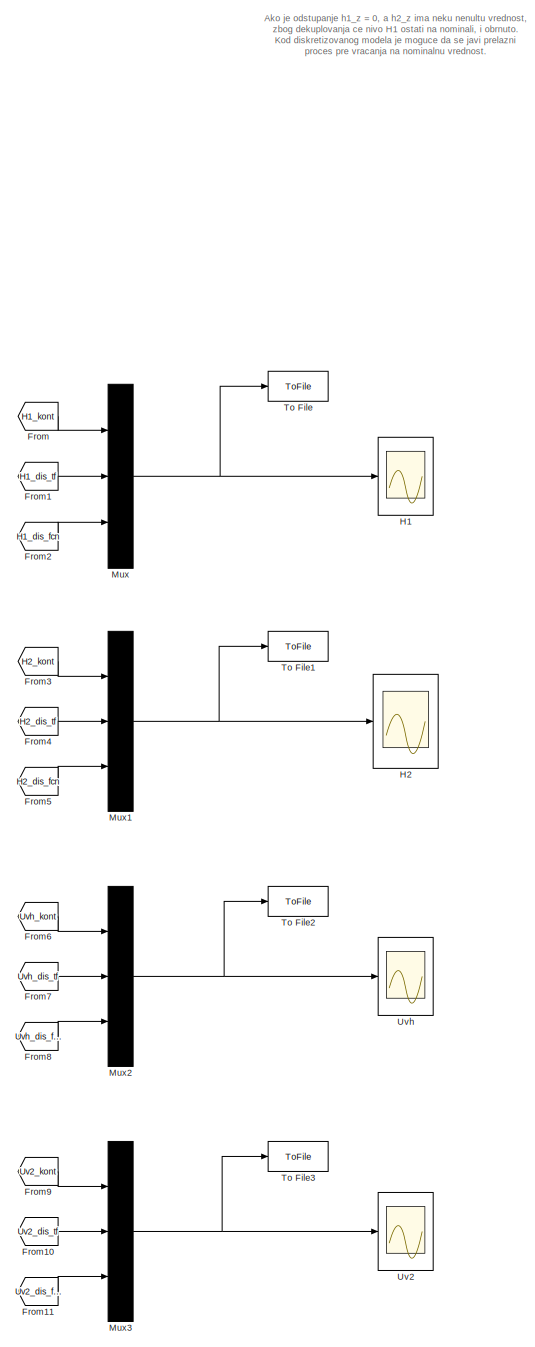
[diagram: root canvas - part 1/4, right side, full height]
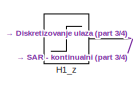
[diagram: root canvas - part 2/4, top left region]
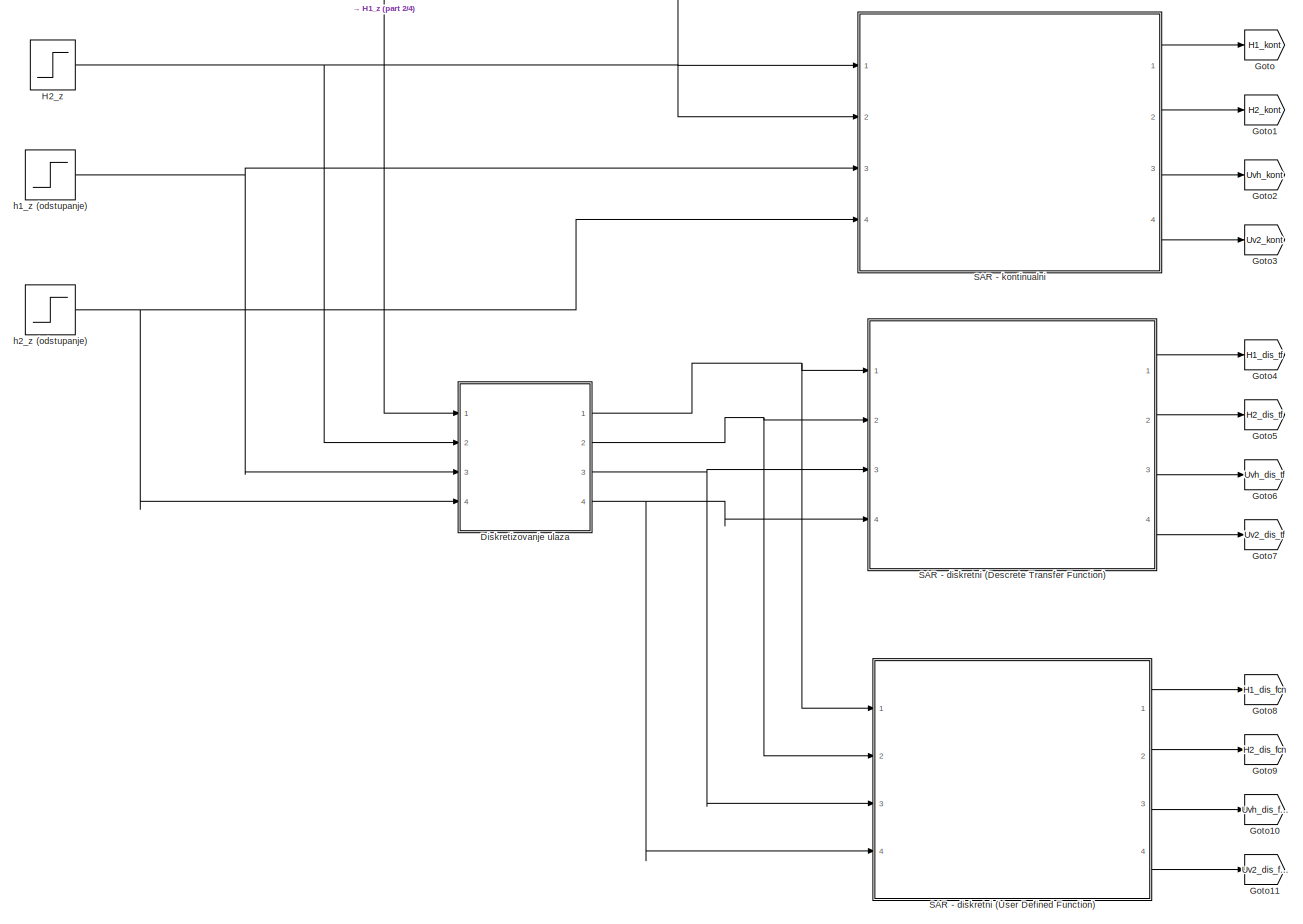
[diagram: root canvas - part 3/4, central region]
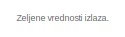
[diagram: root canvas - part 4/4, middle left region]
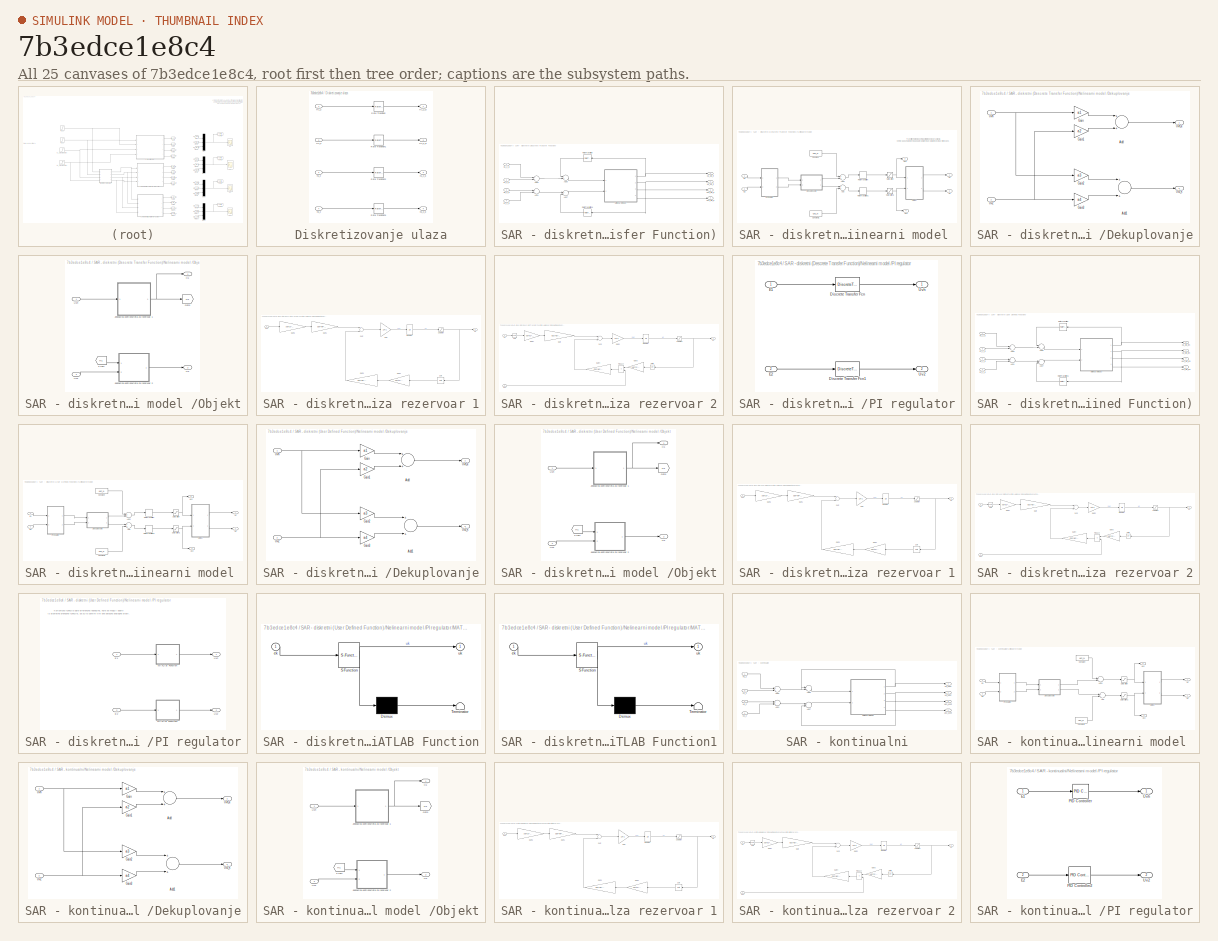
[diagram: thumbnail index - all 25 canvases of the model, root first then tree order]
MODEL slx_7b3edce1e8c4
KIND model
CONFIG AbsTol = auto
CONFIG EnableMultiTasking = on
CONFIG FixedStep = 0.01
CONFIG MaxStep = auto
CONFIG MinStep = auto
CONFIG RelTol = 1e-3
CONFIG SampleTimeConstraint = Unconstrained
CONFIG Solver = ode4
CONFIG SolverName = ode4
CONFIG StartTime = 0.0
CONFIG StopTime = 150
BLOCK [SubSystem] Diskretizovanje ulaza
  Ports = [4, 4]
  RequestExecContextInheritance = off
BLOCK [Inport] Diskretizovanje ulaza/H1_z
  IconDisplay = Port number
BLOCK [Outport] Diskretizovanje ulaza/H1_z_d
  IconDisplay = Port number
BLOCK [Inport] Diskretizovanje ulaza/H2_z
  IconDisplay = Port number
  Port = 2
BLOCK [Outport] Diskretizovanje ulaza/H2_z_d
  IconDisplay = Port number
  Port = 2
BLOCK [RateTransition] Diskretizovanje ulaza/Rate Transition
  OutPortSampleTime = dT
BLOCK [RateTransition] Diskretizovanje ulaza/Rate Transition1
  OutPortSampleTime = dT
BLOCK [RateTransition] Diskretizovanje ulaza/Rate Transition2
  OutPortSampleTime = dT
BLOCK [RateTransition] Diskretizovanje ulaza/Rate Transition3
  InitialCondition = dT
BLOCK [Inport] Diskretizovanje ulaza/h1_z
  IconDisplay = Port number
  Port = 3
BLOCK [Outport] Diskretizovanje ulaza/h1_z_d
  IconDisplay = Port number
  Port = 3
BLOCK [Inport] Diskretizovanje ulaza/h2_z
  IconDisplay = Port number
  Port = 4
BLOCK [Outport] Diskretizovanje ulaza/h2_z_d
  IconDisplay = Port number
  Port = 4
BLOCK [From] From
  GotoTag = H1_kont
BLOCK [From] From1
  GotoTag = H1_dis_tf
BLOCK [From] From10
  GotoTag = Uv2_dis_tf
BLOCK [From] From11
  GotoTag = Uv2_dis_fcn
BLOCK [From] From2
  GotoTag = H1_dis_fcn
BLOCK [From] From3
  GotoTag = H2_kont
BLOCK [From] From4
  GotoTag = H2_dis_tf
BLOCK [From] From5
  GotoTag = H2_dis_fcn
BLOCK [From] From6
  GotoTag = Uvh_kont
BLOCK [From] From7
  GotoTag = Uvh_dis_tf
BLOCK [From] From8
  GotoTag = Uvh_dis_fcn
BLOCK [From] From9
  GotoTag = Uv2_kont
BLOCK [Goto] Goto
  GotoTag = H1_kont
BLOCK [Goto] Goto1
  GotoTag = H2_kont
BLOCK [Goto] Goto10
  GotoTag = Uvh_dis_fcn
BLOCK [Goto] Goto11
  GotoTag = Uv2_dis_fcn
BLOCK [Goto] Goto2
  GotoTag = Uvh_kont
BLOCK [Goto] Goto3
  GotoTag = Uv2_kont
BLOCK [Goto] Goto4
  GotoTag = H1_dis_tf
BLOCK [Goto] Goto5
  GotoTag = H2_dis_tf
BLOCK [Goto] Goto6
  GotoTag = Uvh_dis_tf
BLOCK [Goto] Goto7
  GotoTag = Uv2_dis_tf
BLOCK [Goto] Goto8
  GotoTag = H1_dis_fcn
BLOCK [Goto] Goto9
  GotoTag = H2_dis_fcn
BLOCK [Scope] H1
  Floating = off
  NumInputPorts = 1
  Ports = [1]
  ScopeSpecificationString = Simulink.scopes.TimeScopeBlockCfg('CurrentConfiguration', extmgr.ConfigurationSet(extmgr.Configuration('Core','General UI',true),extmgr.Configuration('Core','Source UI',true),extmgr.Configuration('Sources','WiredSimulink',true,'DataLoggingVariableName','ScopeData3','DataLoggingSaveFormat','Array','DataLoggingDecimation','1','DataLoggingDecimateData',true),extmgr.Configuration('Visuals','Time Domai...<+1734ch>
BLOCK [Step] H1_z 
  After = H1_N
  SampleTime = 0
  Time = 0
BLOCK [Scope] H2
  Floating = off
  NumInputPorts = 1
  Ports = [1]
  ScopeSpecificationString = C++SS(StrPVP('Location','[524, 260, 1263, 853]'),StrPVP('Open','off'),MxPVP('AxesTitles',53,'struct(''axes1'',''%<SignalLabel>'')'),MxPVP('ScopeGraphics',56,'struct(''FigureColor'',''[0.5 0.5 0.5]'',''AxesColor'',''[0 0 0]'',''AxesTickColor'',''[1 1 1]'',''LineColors'',''[1 1 0;1 0 1;0 1 1;1 0 0;0 1 0;0 0 1]'',''LineStyles'',''-|-|-|-|-|-'',''LineWidths'',''[0.5 0.5 0.5 0.5 0.5 0.5]'',''MarkerStyl...<+198ch>
BLOCK [Step] H2_z
  After = H2_N
  SampleTime = 0
  Time = 0
BLOCK [Mux] Mux
  DisplayOption = bar
  Inputs = 3
  Ports = [3, 1]
BLOCK [Mux] Mux1
  DisplayOption = bar
  Inputs = 3
  Ports = [3, 1]
BLOCK [Mux] Mux2
  DisplayOption = bar
  Inputs = 3
  Ports = [3, 1]
BLOCK [Mux] Mux3
  DisplayOption = bar
  Inputs = 3
  Ports = [3, 1]
BLOCK [SubSystem] SAR - diskretni (Descrete Transfer Function)
  Ports = [4, 4]
  RequestExecContextInheritance = off
BLOCK [Sum] SAR - diskretni (Descrete Transfer Function)/Add1
  InputSameDT = off
  OutDataTypeStr = Inherit: Inherit via internal rule
  Ports = [2, 1]
  SaturateOnIntegerOverflow = off
BLOCK [Sum] SAR - diskretni (Descrete Transfer Function)/Add2
  InputSameDT = off
  OutDataTypeStr = Inherit: Inherit via internal rule
  Ports = [2, 1]
  SaturateOnIntegerOverflow = off
BLOCK [Sum] SAR - diskretni (Descrete Transfer Function)/Add5
  InputSameDT = off
  Inputs = -+
  OutDataTypeStr = Inherit: Inherit via internal rule
  Ports = [2, 1]
  SaturateOnIntegerOverflow = off
BLOCK [Sum] SAR - diskretni (Descrete Transfer Function)/Add7
  InputSameDT = off
  Inputs = +-
  OutDataTypeStr = Inherit: Inherit via internal rule
  Ports = [2, 1]
  SaturateOnIntegerOverflow = off
BLOCK [Outport] SAR - diskretni (Descrete Transfer Function)/H1_dis_tf
  IconDisplay = Port number
BLOCK [Inport] SAR - diskretni (Descrete Transfer Function)/H1_z_d
  IconDisplay = Port number
BLOCK [Outport] SAR - diskretni (Descrete Transfer Function)/H2_dis_tf
  IconDisplay = Port number
  Port = 2
BLOCK [Inport] SAR - diskretni (Descrete Transfer Function)/H2_z_d
  IconDisplay = Port number
  Port = 2
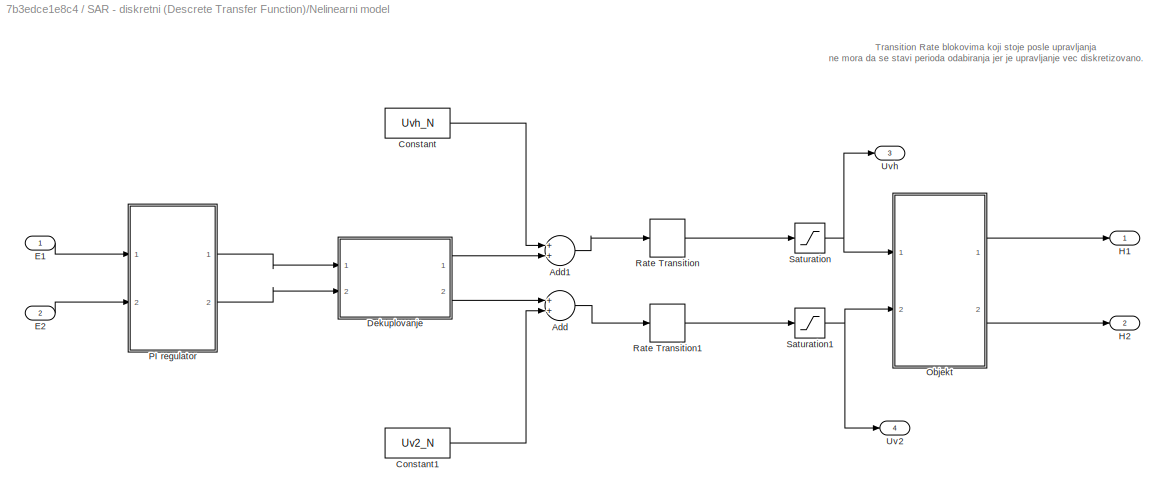
BLOCK [SubSystem] SAR - diskretni (Descrete Transfer Function)/Nelinearni model 
  Ports = [2, 4]
  RequestExecContextInheritance = off
BLOCK [Sum] SAR - diskretni (Descrete Transfer Function)/Nelinearni model /Add
  InputSameDT = off
  OutDataTypeStr = Inherit: Inherit via internal rule
  Ports = [2, 1]
  SaturateOnIntegerOverflow = off
BLOCK [Sum] SAR - diskretni (Descrete Transfer Function)/Nelinearni model /Add1
  InputSameDT = off
  OutDataTypeStr = Inherit: Inherit via internal rule
  Ports = [2, 1]
  SaturateOnIntegerOverflow = off
BLOCK [Constant] SAR - diskretni (Descrete Transfer Function)/Nelinearni model /Constant
  Value = Uvh_N
BLOCK [Constant] SAR - diskretni (Descrete Transfer Function)/Nelinearni model /Constant1
  Value = Uv2_N
BLOCK [SubSystem] SAR - diskretni (Descrete Transfer Function)/Nelinearni model /Dekuplovanje
  Ports = [2, 2]
  RequestExecContextInheritance = off
BLOCK [Sum] SAR - diskretni (Descrete Transfer Function)/Nelinearni model /Dekuplovanje/Add
  InputSameDT = off
  OutDataTypeStr = Inherit: Inherit via internal rule
  Ports = [2, 1]
  SaturateOnIntegerOverflow = off
BLOCK [Sum] SAR - diskretni (Descrete Transfer Function)/Nelinearni model /Dekuplovanje/Add1
  InputSameDT = off
  OutDataTypeStr = Inherit: Inherit via internal rule
  Ports = [2, 1]
  SaturateOnIntegerOverflow = off
BLOCK [Gain] SAR - diskretni (Descrete Transfer Function)/Nelinearni model /Dekuplovanje/Gain
  Gain = a1
  OutDataTypeStr = Inherit: Inherit via internal rule
  ParamDataTypeStr = Inherit: Inherit via internal rule
  SaturateOnIntegerOverflow = off
BLOCK [Gain] SAR - diskretni (Descrete Transfer Function)/Nelinearni model /Dekuplovanje/Gain1
  Gain = a2
  OutDataTypeStr = Inherit: Inherit via internal rule
  ParamDataTypeStr = Inherit: Inherit via internal rule
  SaturateOnIntegerOverflow = off
BLOCK [Gain] SAR - diskretni (Descrete Transfer Function)/Nelinearni model /Dekuplovanje/Gain2
  Gain = a3
  OutDataTypeStr = Inherit: Inherit via internal rule
  ParamDataTypeStr = Inherit: Inherit via internal rule
  SaturateOnIntegerOverflow = off
BLOCK [Gain] SAR - diskretni (Descrete Transfer Function)/Nelinearni model /Dekuplovanje/Gain3
  Gain = a4
  OutDataTypeStr = Inherit: Inherit via internal rule
  ParamDataTypeStr = Inherit: Inherit via internal rule
  SaturateOnIntegerOverflow = off
BLOCK [Inport] SAR - diskretni (Descrete Transfer Function)/Nelinearni model /Dekuplovanje/Uv2
  IconDisplay = Port number
  Port = 2
BLOCK [Outport] SAR - diskretni (Descrete Transfer Function)/Nelinearni model /Dekuplovanje/Uv2_k
  IconDisplay = Port number
  Port = 2
BLOCK [Inport] SAR - diskretni (Descrete Transfer Function)/Nelinearni model /Dekuplovanje/Uvh
  IconDisplay = Port number
BLOCK [Outport] SAR - diskretni (Descrete Transfer Function)/Nelinearni model /Dekuplovanje/Uvh_k
  IconDisplay = Port number
BLOCK [Inport] SAR - diskretni (Descrete Transfer Function)/Nelinearni model /E1
  IconDisplay = Port number
BLOCK [Inport] SAR - diskretni (Descrete Transfer Function)/Nelinearni model /E2
  IconDisplay = Port number
  Port = 2
BLOCK [Outport] SAR - diskretni (Descrete Transfer Function)/Nelinearni model /H1
  IconDisplay = Port number
BLOCK [Outport] SAR - diskretni (Descrete Transfer Function)/Nelinearni model /H2
  IconDisplay = Port number
  Port = 2
BLOCK [SubSystem] SAR - diskretni (Descrete Transfer Function)/Nelinearni model /Objekt
  Ports = [2, 2]
  RequestExecContextInheritance = off
BLOCK [From] SAR - diskretni (Descrete Transfer Function)/Nelinearni model /Objekt/From
  GotoTag = H1
BLOCK [Goto] SAR - diskretni (Descrete Transfer Function)/Nelinearni model /Objekt/Goto
  GotoTag = H1
BLOCK [Outport] SAR - diskretni (Descrete Transfer Function)/Nelinearni model /Objekt/H1
  IconDisplay = Port number
BLOCK [Outport] SAR - diskretni (Descrete Transfer Function)/Nelinearni model /Objekt/H2
  IconDisplay = Port number
  Port = 2
BLOCK [SubSystem] SAR - diskretni (Descrete Transfer Function)/Nelinearni model /Objekt/Jednacina kontionuiteta za rezervoar 1
  Ports = [1, 1]
  RequestExecContextInheritance = off
BLOCK [Gain] SAR - diskretni (Descrete Transfer Function)/Nelinearni model /Objekt/Jednacina kontionuiteta za rezervoar 1/Gain
  Gain = 1/Ar1
  OutDataTypeStr = Inherit: Inherit via internal rule
  ParamDataTypeStr = Inherit: Inherit via internal rule
  SaturateOnIntegerOverflow = off
BLOCK [Gain] SAR - diskretni (Descrete Transfer Function)/Nelinearni model /Objekt/Jednacina kontionuiteta za rezervoar 1/Gain1
  Gain = Cdh*wh*Kvh
  OutDataTypeStr = Inherit: Inherit via internal rule
  ParamDataTypeStr = Inherit: Inherit via internal rule
  SaturateOnIntegerOverflow = off
BLOCK [Gain] SAR - diskretni (Descrete Transfer Function)/Nelinearni model /Objekt/Jednacina kontionuiteta za rezervoar 1/Gain3
  Gain = Cd1*w1*Kv1*Uv1
  OutDataTypeStr = Inherit: Inherit via internal rule
  ParamDataTypeStr = Inherit: Inherit via internal rule
  SaturateOnIntegerOverflow = off
BLOCK [Gain] SAR - diskretni (Descrete Transfer Function)/Nelinearni model /Objekt/Jednacina kontionuiteta za rezervoar 1/Gain4
  Gain = sqrt(2*g)
  OutDataTypeStr = Inherit: Inherit via internal rule
  ParamDataTypeStr = Inherit: Inherit via internal rule
  SaturateOnIntegerOverflow = off
BLOCK [Gain] SAR - diskretni (Descrete Transfer Function)/Nelinearni model /Objekt/Jednacina kontionuiteta za rezervoar 1/Gain5
  Gain = sqrt(2*Ph/ro)
  OutDataTypeStr = Inherit: Inherit via internal rule
  ParamDataTypeStr = Inherit: Inherit via internal rule
  SaturateOnIntegerOverflow = off
BLOCK [Outport] SAR - diskretni (Descrete Transfer Function)/Nelinearni model /Objekt/Jednacina kontionuiteta za rezervoar 1/H1
  IconDisplay = Port number
BLOCK [Integrator] SAR - diskretni (Descrete Transfer Function)/Nelinearni model /Objekt/Jednacina kontionuiteta za rezervoar 1/Integrator
  InitialCondition = H1_N
  Ports = [1, 1]
BLOCK [Saturate] SAR - diskretni (Descrete Transfer Function)/Nelinearni model /Objekt/Jednacina kontionuiteta za rezervoar 1/Saturation
  InputPortMap = u0
  LowerLimit = H1_min
  Ports = [1, 1]
  UpperLimit = H1_max
BLOCK [Sqrt] SAR - diskretni (Descrete Transfer Function)/Nelinearni model /Objekt/Jednacina kontionuiteta za rezervoar 1/Sqrt
BLOCK [Sum] SAR - diskretni (Descrete Transfer Function)/Nelinearni model /Objekt/Jednacina kontionuiteta za rezervoar 1/Sum
  InputSameDT = off
  Inputs = +-
  OutDataTypeStr = Inherit: Inherit via internal rule
  Ports = [2, 1]
  SaturateOnIntegerOverflow = off
BLOCK [Inport] SAR - diskretni (Descrete Transfer Function)/Nelinearni model /Objekt/Jednacina kontionuiteta za rezervoar 1/Uvh
  IconDisplay = Port number
BLOCK [SubSystem] SAR - diskretni (Descrete Transfer Function)/Nelinearni model /Objekt/Jednacina kontionuiteta za rezervoar 2
  Ports = [2, 1]
  RequestExecContextInheritance = off
BLOCK [Gain] SAR - diskretni (Descrete Transfer Function)/Nelinearni model /Objekt/Jednacina kontionuiteta za rezervoar 2/Gain
  Gain = Cd1*w1*Kv1*Uv1
  OutDataTypeStr = Inherit: Inherit via internal rule
  ParamDataTypeStr = Inherit: Inherit via internal rule
  SaturateOnIntegerOverflow = off
BLOCK [Gain] SAR - diskretni (Descrete Transfer Function)/Nelinearni model /Objekt/Jednacina kontionuiteta za rezervoar 2/Gain1
  Gain = sqrt(2*g)
  OutDataTypeStr = Inherit: Inherit via internal rule
  ParamDataTypeStr = Inherit: Inherit via internal rule
  SaturateOnIntegerOverflow = off
BLOCK [Gain] SAR - diskretni (Descrete Transfer Function)/Nelinearni model /Objekt/Jednacina kontionuiteta za rezervoar 2/Gain2
  Gain = 1/Ar2
  OutDataTypeStr = Inherit: Inherit via internal rule
  ParamDataTypeStr = Inherit: Inherit via internal rule
  SaturateOnIntegerOverflow = off
BLOCK [Gain] SAR - diskretni (Descrete Transfer Function)/Nelinearni model /Objekt/Jednacina kontionuiteta za rezervoar 2/Gain3
  Gain = sqrt(2*g)
  OutDataTypeStr = Inherit: Inherit via internal rule
  ParamDataTypeStr = Inherit: Inherit via internal rule
  SaturateOnIntegerOverflow = off
BLOCK [Gain] SAR - diskretni (Descrete Transfer Function)/Nelinearni model /Objekt/Jednacina kontionuiteta za rezervoar 2/Gain4
  Gain = Cd2*w2*Kv2
  OutDataTypeStr = Inherit: Inherit via internal rule
  ParamDataTypeStr = Inherit: Inherit via internal rule
  SaturateOnIntegerOverflow = off
BLOCK [Inport] SAR - diskretni (Descrete Transfer Function)/Nelinearni model /Objekt/Jednacina kontionuiteta za rezervoar 2/H1
  IconDisplay = Port number
BLOCK [Outport] SAR - diskretni (Descrete Transfer Function)/Nelinearni model /Objekt/Jednacina kontionuiteta za rezervoar 2/H2
  IconDisplay = Port number
BLOCK [Integrator] SAR - diskretni (Descrete Transfer Function)/Nelinearni model /Objekt/Jednacina kontionuiteta za rezervoar 2/Integrator
  InitialCondition = H2_N
  Ports = [1, 1]
BLOCK [Product] SAR - diskretni (Descrete Transfer Function)/Nelinearni model /Objekt/Jednacina kontionuiteta za rezervoar 2/Product
  InputSameDT = off
  OutDataTypeStr = Inherit: Inherit via internal rule
  Ports = [2, 1]
  RndMeth = Floor
  SaturateOnIntegerOverflow = off
BLOCK [Saturate] SAR - diskretni (Descrete Transfer Function)/Nelinearni model /Objekt/Jednacina kontionuiteta za rezervoar 2/Saturation
  InputPortMap = u0
  LowerLimit = H2_min
  Ports = [1, 1]
  UpperLimit = H2_max
BLOCK [Sqrt] SAR - diskretni (Descrete Transfer Function)/Nelinearni model /Objekt/Jednacina kontionuiteta za rezervoar 2/Sqrt
BLOCK [Sqrt] SAR - diskretni (Descrete Transfer Function)/Nelinearni model /Objekt/Jednacina kontionuiteta za rezervoar 2/Sqrt1
BLOCK [Sum] SAR - diskretni (Descrete Transfer Function)/Nelinearni model /Objekt/Jednacina kontionuiteta za rezervoar 2/Sum
  InputSameDT = off
  Inputs = +-
  OutDataTypeStr = Inherit: Inherit via internal rule
  Ports = [2, 1]
  SaturateOnIntegerOverflow = off
BLOCK [Inport] SAR - diskretni (Descrete Transfer Function)/Nelinearni model /Objekt/Jednacina kontionuiteta za rezervoar 2/Uv2
  IconDisplay = Port number
  Port = 2
BLOCK [Inport] SAR - diskretni (Descrete Transfer Function)/Nelinearni model /Objekt/Uv2
  IconDisplay = Port number
  Port = 2
BLOCK [Inport] SAR - diskretni (Descrete Transfer Function)/Nelinearni model /Objekt/Uvh
  IconDisplay = Port number
BLOCK [SubSystem] SAR - diskretni (Descrete Transfer Function)/Nelinearni model /PI regulator
  Ports = [2, 2]
  RequestExecContextInheritance = off
BLOCK [DiscreteTransferFcn] SAR - diskretni (Descrete Transfer Function)/Nelinearni model /PI regulator/Discrete Transfer Fcn
  Denominator = [den_d1]
  InputPortMap = u0
  Numerator = [num_d1]
  Ports = [1, 1]
  SampleTime = dT
BLOCK [DiscreteTransferFcn] SAR - diskretni (Descrete Transfer Function)/Nelinearni model /PI regulator/Discrete Transfer Fcn1
  Denominator = [den_d2]
  InputPortMap = u0
  Numerator = [num_d2]
  Ports = [1, 1]
  SampleTime = dT
BLOCK [Inport] SAR - diskretni (Descrete Transfer Function)/Nelinearni model /PI regulator/E1
  IconDisplay = Port number
BLOCK [Inport] SAR - diskretni (Descrete Transfer Function)/Nelinearni model /PI regulator/E2
  IconDisplay = Port number
  Port = 2
BLOCK [Outport] SAR - diskretni (Descrete Transfer Function)/Nelinearni model /PI regulator/Uv2
  IconDisplay = Port number
  Port = 2
BLOCK [Outport] SAR - diskretni (Descrete Transfer Function)/Nelinearni model /PI regulator/Uvh
  IconDisplay = Port number
BLOCK [RateTransition] SAR - diskretni (Descrete Transfer Function)/Nelinearni model /Rate Transition
BLOCK [RateTransition] SAR - diskretni (Descrete Transfer Function)/Nelinearni model /Rate Transition1
BLOCK [Saturate] SAR - diskretni (Descrete Transfer Function)/Nelinearni model /Saturation
  InputPortMap = u0
  LowerLimit = Uvh_min
  Ports = [1, 1]
  UpperLimit = Uvh_max
BLOCK [Saturate] SAR - diskretni (Descrete Transfer Function)/Nelinearni model /Saturation1
  InputPortMap = u0
  LowerLimit = Uv2_min
  Ports = [1, 1]
  UpperLimit = Uv2_max
BLOCK [Outport] SAR - diskretni (Descrete Transfer Function)/Nelinearni model /Uv2
  IconDisplay = Port number
  Port = 4
BLOCK [Outport] SAR - diskretni (Descrete Transfer Function)/Nelinearni model /Uvh
  IconDisplay = Port number
  Port = 3
BLOCK [RateTransition] SAR - diskretni (Descrete Transfer Function)/Rate Transition
  OutPortSampleTime = dT
BLOCK [RateTransition] SAR - diskretni (Descrete Transfer Function)/Rate Transition1
  OutPortSampleTime = dT
BLOCK [Outport] SAR - diskretni (Descrete Transfer Function)/Uv2_dis_tf
  IconDisplay = Port number
  Port = 4
BLOCK [Outport] SAR - diskretni (Descrete Transfer Function)/Uvh_dis_tf
  IconDisplay = Port number
  Port = 3
BLOCK [Inport] SAR - diskretni (Descrete Transfer Function)/h1_z_d
  IconDisplay = Port number
  Port = 3
BLOCK [Inport] SAR - diskretni (Descrete Transfer Function)/h2_z_d
  IconDisplay = Port number
  Port = 4
BLOCK [SubSystem] SAR - diskretni (User Defined Function)
  Ports = [4, 4]
  RequestExecContextInheritance = off
BLOCK [Sum] SAR - diskretni (User Defined Function)/Add1
  InputSameDT = off
  OutDataTypeStr = Inherit: Inherit via internal rule
  Ports = [2, 1]
  SaturateOnIntegerOverflow = off
BLOCK [Sum] SAR - diskretni (User Defined Function)/Add2
  InputSameDT = off
  OutDataTypeStr = Inherit: Inherit via internal rule
  Ports = [2, 1]
  SaturateOnIntegerOverflow = off
BLOCK [Sum] SAR - diskretni (User Defined Function)/Add5
  InputSameDT = off
  Inputs = -+
  OutDataTypeStr = Inherit: Inherit via internal rule
  Ports = [2, 1]
  SaturateOnIntegerOverflow = off
BLOCK [Sum] SAR - diskretni (User Defined Function)/Add7
  InputSameDT = off
  Inputs = +-
  OutDataTypeStr = Inherit: Inherit via internal rule
  Ports = [2, 1]
  SaturateOnIntegerOverflow = off
BLOCK [Outport] SAR - diskretni (User Defined Function)/H1_dis_fcn
  IconDisplay = Port number
BLOCK [Inport] SAR - diskretni (User Defined Function)/H1_z_d
  IconDisplay = Port number
BLOCK [Outport] SAR - diskretni (User Defined Function)/H2_dis_fcn
  IconDisplay = Port number
  Port = 2
BLOCK [Inport] SAR - diskretni (User Defined Function)/H2_z_d
  IconDisplay = Port number
  Port = 2
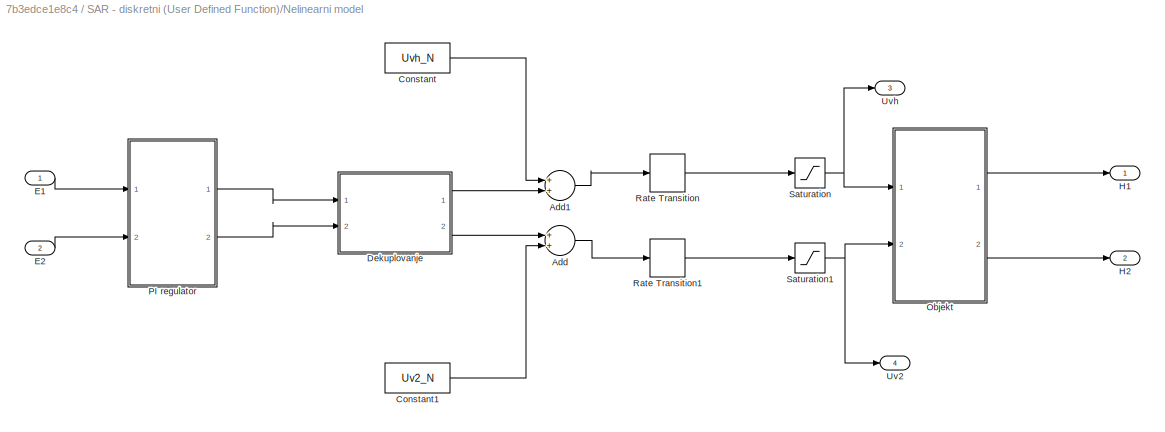
BLOCK [SubSystem] SAR - diskretni (User Defined Function)/Nelinearni model 
  Ports = [2, 4]
  RequestExecContextInheritance = off
BLOCK [Sum] SAR - diskretni (User Defined Function)/Nelinearni model /Add
  InputSameDT = off
  OutDataTypeStr = Inherit: Inherit via internal rule
  Ports = [2, 1]
  SaturateOnIntegerOverflow = off
BLOCK [Sum] SAR - diskretni (User Defined Function)/Nelinearni model /Add1
  InputSameDT = off
  OutDataTypeStr = Inherit: Inherit via internal rule
  Ports = [2, 1]
  SaturateOnIntegerOverflow = off
BLOCK [Constant] SAR - diskretni (User Defined Function)/Nelinearni model /Constant
  Value = Uvh_N
BLOCK [Constant] SAR - diskretni (User Defined Function)/Nelinearni model /Constant1
  Value = Uv2_N
BLOCK [SubSystem] SAR - diskretni (User Defined Function)/Nelinearni model /Dekuplovanje
  Ports = [2, 2]
  RequestExecContextInheritance = off
BLOCK [Sum] SAR - diskretni (User Defined Function)/Nelinearni model /Dekuplovanje/Add
  InputSameDT = off
  OutDataTypeStr = Inherit: Inherit via internal rule
  Ports = [2, 1]
  SaturateOnIntegerOverflow = off
BLOCK [Sum] SAR - diskretni (User Defined Function)/Nelinearni model /Dekuplovanje/Add1
  InputSameDT = off
  OutDataTypeStr = Inherit: Inherit via internal rule
  Ports = [2, 1]
  SaturateOnIntegerOverflow = off
BLOCK [Gain] SAR - diskretni (User Defined Function)/Nelinearni model /Dekuplovanje/Gain
  Gain = a1
  OutDataTypeStr = Inherit: Inherit via internal rule
  ParamDataTypeStr = Inherit: Inherit via internal rule
  SaturateOnIntegerOverflow = off
BLOCK [Gain] SAR - diskretni (User Defined Function)/Nelinearni model /Dekuplovanje/Gain1
  Gain = a2
  OutDataTypeStr = Inherit: Inherit via internal rule
  ParamDataTypeStr = Inherit: Inherit via internal rule
  SaturateOnIntegerOverflow = off
BLOCK [Gain] SAR - diskretni (User Defined Function)/Nelinearni model /Dekuplovanje/Gain2
  Gain = a3
  OutDataTypeStr = Inherit: Inherit via internal rule
  ParamDataTypeStr = Inherit: Inherit via internal rule
  SaturateOnIntegerOverflow = off
BLOCK [Gain] SAR - diskretni (User Defined Function)/Nelinearni model /Dekuplovanje/Gain3
  Gain = a4
  OutDataTypeStr = Inherit: Inherit via internal rule
  ParamDataTypeStr = Inherit: Inherit via internal rule
  SaturateOnIntegerOverflow = off
BLOCK [Inport] SAR - diskretni (User Defined Function)/Nelinearni model /Dekuplovanje/Uv2
  IconDisplay = Port number
  Port = 2
BLOCK [Outport] SAR - diskretni (User Defined Function)/Nelinearni model /Dekuplovanje/Uv2_k
  IconDisplay = Port number
  Port = 2
BLOCK [Inport] SAR - diskretni (User Defined Function)/Nelinearni model /Dekuplovanje/Uvh
  IconDisplay = Port number
BLOCK [Outport] SAR - diskretni (User Defined Function)/Nelinearni model /Dekuplovanje/Uvh_k
  IconDisplay = Port number
BLOCK [Inport] SAR - diskretni (User Defined Function)/Nelinearni model /E1
  IconDisplay = Port number
BLOCK [Inport] SAR - diskretni (User Defined Function)/Nelinearni model /E2
  IconDisplay = Port number
  Port = 2
BLOCK [Outport] SAR - diskretni (User Defined Function)/Nelinearni model /H1
  IconDisplay = Port number
BLOCK [Outport] SAR - diskretni (User Defined Function)/Nelinearni model /H2
  IconDisplay = Port number
  Port = 2
BLOCK [SubSystem] SAR - diskretni (User Defined Function)/Nelinearni model /Objekt
  Ports = [2, 2]
  RequestExecContextInheritance = off
BLOCK [From] SAR - diskretni (User Defined Function)/Nelinearni model /Objekt/From
  GotoTag = H1
BLOCK [Goto] SAR - diskretni (User Defined Function)/Nelinearni model /Objekt/Goto
  GotoTag = H1
BLOCK [Outport] SAR - diskretni (User Defined Function)/Nelinearni model /Objekt/H1
  IconDisplay = Port number
BLOCK [Outport] SAR - diskretni (User Defined Function)/Nelinearni model /Objekt/H2
  IconDisplay = Port number
  Port = 2
BLOCK [SubSystem] SAR - diskretni (User Defined Function)/Nelinearni model /Objekt/Jednacina kontionuiteta za rezervoar 1
  Ports = [1, 1]
  RequestExecContextInheritance = off
BLOCK [Gain] SAR - diskretni (User Defined Function)/Nelinearni model /Objekt/Jednacina kontionuiteta za rezervoar 1/Gain
  Gain = 1/Ar1
  OutDataTypeStr = Inherit: Inherit via internal rule
  ParamDataTypeStr = Inherit: Inherit via internal rule
  SaturateOnIntegerOverflow = off
BLOCK [Gain] SAR - diskretni (User Defined Function)/Nelinearni model /Objekt/Jednacina kontionuiteta za rezervoar 1/Gain1
  Gain = Cdh*wh*Kvh
  OutDataTypeStr = Inherit: Inherit via internal rule
  ParamDataTypeStr = Inherit: Inherit via internal rule
  SaturateOnIntegerOverflow = off
BLOCK [Gain] SAR - diskretni (User Defined Function)/Nelinearni model /Objekt/Jednacina kontionuiteta za rezervoar 1/Gain3
  Gain = Cd1*w1*Kv1*Uv1
  OutDataTypeStr = Inherit: Inherit via internal rule
  ParamDataTypeStr = Inherit: Inherit via internal rule
  SaturateOnIntegerOverflow = off
BLOCK [Gain] SAR - diskretni (User Defined Function)/Nelinearni model /Objekt/Jednacina kontionuiteta za rezervoar 1/Gain4
  Gain = sqrt(2*g)
  OutDataTypeStr = Inherit: Inherit via internal rule
  ParamDataTypeStr = Inherit: Inherit via internal rule
  SaturateOnIntegerOverflow = off
BLOCK [Gain] SAR - diskretni (User Defined Function)/Nelinearni model /Objekt/Jednacina kontionuiteta za rezervoar 1/Gain5
  Gain = sqrt(2*Ph/ro)
  OutDataTypeStr = Inherit: Inherit via internal rule
  ParamDataTypeStr = Inherit: Inherit via internal rule
  SaturateOnIntegerOverflow = off
BLOCK [Outport] SAR - diskretni (User Defined Function)/Nelinearni model /Objekt/Jednacina kontionuiteta za rezervoar 1/H1
  IconDisplay = Port number
BLOCK [Integrator] SAR - diskretni (User Defined Function)/Nelinearni model /Objekt/Jednacina kontionuiteta za rezervoar 1/Integrator
  InitialCondition = H1_N
  Ports = [1, 1]
BLOCK [Saturate] SAR - diskretni (User Defined Function)/Nelinearni model /Objekt/Jednacina kontionuiteta za rezervoar 1/Saturation
  InputPortMap = u0
  LowerLimit = H1_min
  Ports = [1, 1]
  UpperLimit = H1_max
BLOCK [Sqrt] SAR - diskretni (User Defined Function)/Nelinearni model /Objekt/Jednacina kontionuiteta za rezervoar 1/Sqrt
BLOCK [Sum] SAR - diskretni (User Defined Function)/Nelinearni model /Objekt/Jednacina kontionuiteta za rezervoar 1/Sum
  InputSameDT = off
  Inputs = +-
  OutDataTypeStr = Inherit: Inherit via internal rule
  Ports = [2, 1]
  SaturateOnIntegerOverflow = off
BLOCK [Inport] SAR - diskretni (User Defined Function)/Nelinearni model /Objekt/Jednacina kontionuiteta za rezervoar 1/Uvh
  IconDisplay = Port number
BLOCK [SubSystem] SAR - diskretni (User Defined Function)/Nelinearni model /Objekt/Jednacina kontionuiteta za rezervoar 2
  Ports = [2, 1]
  RequestExecContextInheritance = off
BLOCK [Gain] SAR - diskretni (User Defined Function)/Nelinearni model /Objekt/Jednacina kontionuiteta za rezervoar 2/Gain
  Gain = Cd1*w1*Kv1*Uv1
  OutDataTypeStr = Inherit: Inherit via internal rule
  ParamDataTypeStr = Inherit: Inherit via internal rule
  SaturateOnIntegerOverflow = off
BLOCK [Gain] SAR - diskretni (User Defined Function)/Nelinearni model /Objekt/Jednacina kontionuiteta za rezervoar 2/Gain1
  Gain = sqrt(2*g)
  OutDataTypeStr = Inherit: Inherit via internal rule
  ParamDataTypeStr = Inherit: Inherit via internal rule
  SaturateOnIntegerOverflow = off
BLOCK [Gain] SAR - diskretni (User Defined Function)/Nelinearni model /Objekt/Jednacina kontionuiteta za rezervoar 2/Gain2
  Gain = 1/Ar2
  OutDataTypeStr = Inherit: Inherit via internal rule
  ParamDataTypeStr = Inherit: Inherit via internal rule
  SaturateOnIntegerOverflow = off
BLOCK [Gain] SAR - diskretni (User Defined Function)/Nelinearni model /Objekt/Jednacina kontionuiteta za rezervoar 2/Gain3
  Gain = sqrt(2*g)
  OutDataTypeStr = Inherit: Inherit via internal rule
  ParamDataTypeStr = Inherit: Inherit via internal rule
  SaturateOnIntegerOverflow = off
BLOCK [Gain] SAR - diskretni (User Defined Function)/Nelinearni model /Objekt/Jednacina kontionuiteta za rezervoar 2/Gain4
  Gain = Cd2*w2*Kv2
  OutDataTypeStr = Inherit: Inherit via internal rule
  ParamDataTypeStr = Inherit: Inherit via internal rule
  SaturateOnIntegerOverflow = off
BLOCK [Inport] SAR - diskretni (User Defined Function)/Nelinearni model /Objekt/Jednacina kontionuiteta za rezervoar 2/H1
  IconDisplay = Port number
BLOCK [Outport] SAR - diskretni (User Defined Function)/Nelinearni model /Objekt/Jednacina kontionuiteta za rezervoar 2/H2
  IconDisplay = Port number
BLOCK [Integrator] SAR - diskretni (User Defined Function)/Nelinearni model /Objekt/Jednacina kontionuiteta za rezervoar 2/Integrator
  InitialCondition = H2_N
  Ports = [1, 1]
BLOCK [Product] SAR - diskretni (User Defined Function)/Nelinearni model /Objekt/Jednacina kontionuiteta za rezervoar 2/Product
  InputSameDT = off
  OutDataTypeStr = Inherit: Inherit via internal rule
  Ports = [2, 1]
  RndMeth = Floor
  SaturateOnIntegerOverflow = off
BLOCK [Saturate] SAR - diskretni (User Defined Function)/Nelinearni model /Objekt/Jednacina kontionuiteta za rezervoar 2/Saturation
  InputPortMap = u0
  LowerLimit = H2_min
  Ports = [1, 1]
  UpperLimit = H2_max
BLOCK [Sqrt] SAR - diskretni (User Defined Function)/Nelinearni model /Objekt/Jednacina kontionuiteta za rezervoar 2/Sqrt
BLOCK [Sqrt] SAR - diskretni (User Defined Function)/Nelinearni model /Objekt/Jednacina kontionuiteta za rezervoar 2/Sqrt1
BLOCK [Sum] SAR - diskretni (User Defined Function)/Nelinearni model /Objekt/Jednacina kontionuiteta za rezervoar 2/Sum
  InputSameDT = off
  Inputs = +-
  OutDataTypeStr = Inherit: Inherit via internal rule
  Ports = [2, 1]
  SaturateOnIntegerOverflow = off
BLOCK [Inport] SAR - diskretni (User Defined Function)/Nelinearni model /Objekt/Jednacina kontionuiteta za rezervoar 2/Uv2
  IconDisplay = Port number
  Port = 2
BLOCK [Inport] SAR - diskretni (User Defined Function)/Nelinearni model /Objekt/Uv2
  IconDisplay = Port number
  Port = 2
BLOCK [Inport] SAR - diskretni (User Defined Function)/Nelinearni model /Objekt/Uvh
  IconDisplay = Port number
BLOCK [SubSystem] SAR - diskretni (User Defined Function)/Nelinearni model /PI regulator
  Ports = [2, 2]
  RequestExecContextInheritance = off
BLOCK [Inport] SAR - diskretni (User Defined Function)/Nelinearni model /PI regulator/E1
  IconDisplay = Port number
BLOCK [Inport] SAR - diskretni (User Defined Function)/Nelinearni model /PI regulator/E2
  IconDisplay = Port number
  Port = 2
BLOCK [SubSystem] SAR - diskretni (User Defined Function)/Nelinearni model /PI regulator/MATLAB Function
  ErrorFcn = Stateflow.Translate.translate
  PermitHierarchicalResolution = ExplicitOnly
  Ports = [1, 1]
  RequestExecContextInheritance = off
  SFBlockType = MATLAB Function
  TreatAsAtomicUnit = on
BLOCK [Demux] SAR - diskretni (User Defined Function)/Nelinearni model /PI regulator/MATLAB Function/ Demux 
  Outputs = 1
  Ports = [1, 1]
BLOCK [S-Function] SAR - diskretni (User Defined Function)/Nelinearni model /PI regulator/MATLAB Function/ SFunction 
  EnableBusSupport = on
  FunctionName = sf_sfun
  PortCounts = [1 2]
  Ports = [1, 2]
  SFcnIsStateOwnerBlock = off
  SFunctionDeploymentMode = off
  Tag = Stateflow S-Function poredjenje_regulatora_nelinearni_model 3
BLOCK [Terminator] SAR - diskretni (User Defined Function)/Nelinearni model /PI regulator/MATLAB Function/ Terminator 
BLOCK [Inport] SAR - diskretni (User Defined Function)/Nelinearni model /PI regulator/MATLAB Function/ek
  IconDisplay = Port number
BLOCK [Outport] SAR - diskretni (User Defined Function)/Nelinearni model /PI regulator/MATLAB Function/uk
  IconDisplay = Port number
BLOCK [SubSystem] SAR - diskretni (User Defined Function)/Nelinearni model /PI regulator/MATLAB Function1
  ErrorFcn = Stateflow.Translate.translate
  PermitHierarchicalResolution = ExplicitOnly
  Ports = [1, 1]
  RequestExecContextInheritance = off
  SFBlockType = MATLAB Function
  TreatAsAtomicUnit = on
BLOCK [Demux] SAR - diskretni (User Defined Function)/Nelinearni model /PI regulator/MATLAB Function1/ Demux 
  Outputs = 1
  Ports = [1, 1]
BLOCK [S-Function] SAR - diskretni (User Defined Function)/Nelinearni model /PI regulator/MATLAB Function1/ SFunction 
  EnableBusSupport = on
  FunctionName = sf_sfun
  PortCounts = [1 2]
  Ports = [1, 2]
  SFcnIsStateOwnerBlock = off
  SFunctionDeploymentMode = off
  Tag = Stateflow S-Function poredjenje_regulatora_nelinearni_model 1
BLOCK [Terminator] SAR - diskretni (User Defined Function)/Nelinearni model /PI regulator/MATLAB Function1/ Terminator 
BLOCK [Inport] SAR - diskretni (User Defined Function)/Nelinearni model /PI regulator/MATLAB Function1/ek
  IconDisplay = Port number
BLOCK [Outport] SAR - diskretni (User Defined Function)/Nelinearni model /PI regulator/MATLAB Function1/uk
  IconDisplay = Port number
BLOCK [Outport] SAR - diskretni (User Defined Function)/Nelinearni model /PI regulator/Uv2
  IconDisplay = Port number
  Port = 2
BLOCK [Outport] SAR - diskretni (User Defined Function)/Nelinearni model /PI regulator/Uvh
  IconDisplay = Port number
BLOCK [RateTransition] SAR - diskretni (User Defined Function)/Nelinearni model /Rate Transition
BLOCK [RateTransition] SAR - diskretni (User Defined Function)/Nelinearni model /Rate Transition1
BLOCK [Saturate] SAR - diskretni (User Defined Function)/Nelinearni model /Saturation
  InputPortMap = u0
  LowerLimit = Uvh_min
  Ports = [1, 1]
  UpperLimit = Uvh_max
BLOCK [Saturate] SAR - diskretni (User Defined Function)/Nelinearni model /Saturation1
  InputPortMap = u0
  LowerLimit = Uv2_min
  Ports = [1, 1]
  UpperLimit = Uv2_max
BLOCK [Outport] SAR - diskretni (User Defined Function)/Nelinearni model /Uv2
  IconDisplay = Port number
  Port = 4
BLOCK [Outport] SAR - diskretni (User Defined Function)/Nelinearni model /Uvh
  IconDisplay = Port number
  Port = 3
BLOCK [RateTransition] SAR - diskretni (User Defined Function)/Rate Transition
  OutPortSampleTime = dT
BLOCK [RateTransition] SAR - diskretni (User Defined Function)/Rate Transition1
  OutPortSampleTime = dT
BLOCK [Outport] SAR - diskretni (User Defined Function)/Uv2_dis_fcn
  IconDisplay = Port number
  Port = 4
BLOCK [Outport] SAR - diskretni (User Defined Function)/Uvh_dis_fcn
  IconDisplay = Port number
  Port = 3
BLOCK [Inport] SAR - diskretni (User Defined Function)/h1_z_d
  IconDisplay = Port number
  Port = 3
BLOCK [Inport] SAR - diskretni (User Defined Function)/h2_z_d
  IconDisplay = Port number
  Port = 4
BLOCK [SubSystem] SAR - kontinualni
  Ports = [4, 4]
  RequestExecContextInheritance = off
BLOCK [Sum] SAR - kontinualni/Add1
  InputSameDT = off
  OutDataTypeStr = Inherit: Inherit via internal rule
  Ports = [2, 1]
  SaturateOnIntegerOverflow = off
BLOCK [Sum] SAR - kontinualni/Add2
  InputSameDT = off
  OutDataTypeStr = Inherit: Inherit via internal rule
  Ports = [2, 1]
  SaturateOnIntegerOverflow = off
BLOCK [Sum] SAR - kontinualni/Add5
  InputSameDT = off
  Inputs = -+
  OutDataTypeStr = Inherit: Inherit via internal rule
  Ports = [2, 1]
  SaturateOnIntegerOverflow = off
BLOCK [Sum] SAR - kontinualni/Add7
  InputSameDT = off
  Inputs = +-
  OutDataTypeStr = Inherit: Inherit via internal rule
  Ports = [2, 1]
  SaturateOnIntegerOverflow = off
BLOCK [Outport] SAR - kontinualni/H1_kont
  IconDisplay = Port number
BLOCK [Inport] SAR - kontinualni/H1_z
  IconDisplay = Port number
BLOCK [Outport] SAR - kontinualni/H2_kont
  IconDisplay = Port number
  Port = 2
BLOCK [Inport] SAR - kontinualni/H2_z
  IconDisplay = Port number
  Port = 2
BLOCK [SubSystem] SAR - kontinualni/Nelinearni model 
  Ports = [2, 4]
  RequestExecContextInheritance = off
BLOCK [Sum] SAR - kontinualni/Nelinearni model /Add
  InputSameDT = off
  OutDataTypeStr = Inherit: Inherit via internal rule
  Ports = [2, 1]
  SaturateOnIntegerOverflow = off
BLOCK [Sum] SAR - kontinualni/Nelinearni model /Add1
  InputSameDT = off
  OutDataTypeStr = Inherit: Inherit via internal rule
  Ports = [2, 1]
  SaturateOnIntegerOverflow = off
BLOCK [Constant] SAR - kontinualni/Nelinearni model /Constant
  Value = Uvh_N
BLOCK [Constant] SAR - kontinualni/Nelinearni model /Constant1
  Value = Uv2_N
BLOCK [SubSystem] SAR - kontinualni/Nelinearni model /Dekuplovanje
  Ports = [2, 2]
  RequestExecContextInheritance = off
BLOCK [Sum] SAR - kontinualni/Nelinearni model /Dekuplovanje/Add
  InputSameDT = off
  OutDataTypeStr = Inherit: Inherit via internal rule
  Ports = [2, 1]
  SaturateOnIntegerOverflow = off
BLOCK [Sum] SAR - kontinualni/Nelinearni model /Dekuplovanje/Add1
  InputSameDT = off
  OutDataTypeStr = Inherit: Inherit via internal rule
  Ports = [2, 1]
  SaturateOnIntegerOverflow = off
BLOCK [Gain] SAR - kontinualni/Nelinearni model /Dekuplovanje/Gain
  Gain = a1
  OutDataTypeStr = Inherit: Inherit via internal rule
  ParamDataTypeStr = Inherit: Inherit via internal rule
  SaturateOnIntegerOverflow = off
BLOCK [Gain] SAR - kontinualni/Nelinearni model /Dekuplovanje/Gain1
  Gain = a2
  OutDataTypeStr = Inherit: Inherit via internal rule
  ParamDataTypeStr = Inherit: Inherit via internal rule
  SaturateOnIntegerOverflow = off
BLOCK [Gain] SAR - kontinualni/Nelinearni model /Dekuplovanje/Gain2
  Gain = a3
  OutDataTypeStr = Inherit: Inherit via internal rule
  ParamDataTypeStr = Inherit: Inherit via internal rule
  SaturateOnIntegerOverflow = off
BLOCK [Gain] SAR - kontinualni/Nelinearni model /Dekuplovanje/Gain3
  Gain = a4
  OutDataTypeStr = Inherit: Inherit via internal rule
  ParamDataTypeStr = Inherit: Inherit via internal rule
  SaturateOnIntegerOverflow = off
BLOCK [Inport] SAR - kontinualni/Nelinearni model /Dekuplovanje/Uv2
  IconDisplay = Port number
  Port = 2
BLOCK [Outport] SAR - kontinualni/Nelinearni model /Dekuplovanje/Uv2_k
  IconDisplay = Port number
  Port = 2
BLOCK [Inport] SAR - kontinualni/Nelinearni model /Dekuplovanje/Uvh
  IconDisplay = Port number
BLOCK [Outport] SAR - kontinualni/Nelinearni model /Dekuplovanje/Uvh_k
  IconDisplay = Port number
BLOCK [Inport] SAR - kontinualni/Nelinearni model /E1
  IconDisplay = Port number
BLOCK [Inport] SAR - kontinualni/Nelinearni model /E2
  IconDisplay = Port number
  Port = 2
BLOCK [Outport] SAR - kontinualni/Nelinearni model /H1
  IconDisplay = Port number
BLOCK [Outport] SAR - kontinualni/Nelinearni model /H2
  IconDisplay = Port number
  Port = 2
BLOCK [SubSystem] SAR - kontinualni/Nelinearni model /Objekt
  Ports = [2, 2]
  RequestExecContextInheritance = off
BLOCK [From] SAR - kontinualni/Nelinearni model /Objekt/From
  GotoTag = H1
BLOCK [Goto] SAR - kontinualni/Nelinearni model /Objekt/Goto
  GotoTag = H1
BLOCK [Outport] SAR - kontinualni/Nelinearni model /Objekt/H1
  IconDisplay = Port number
BLOCK [Outport] SAR - kontinualni/Nelinearni model /Objekt/H2
  IconDisplay = Port number
  Port = 2
BLOCK [SubSystem] SAR - kontinualni/Nelinearni model /Objekt/Jednacina kontionuiteta za rezervoar 1
  Ports = [1, 1]
  RequestExecContextInheritance = off
BLOCK [Gain] SAR - kontinualni/Nelinearni model /Objekt/Jednacina kontionuiteta za rezervoar 1/Gain
  Gain = 1/Ar1
  OutDataTypeStr = Inherit: Inherit via internal rule
  ParamDataTypeStr = Inherit: Inherit via internal rule
  SaturateOnIntegerOverflow = off
BLOCK [Gain] SAR - kontinualni/Nelinearni model /Objekt/Jednacina kontionuiteta za rezervoar 1/Gain1
  Gain = Cdh*wh*Kvh
  OutDataTypeStr = Inherit: Inherit via internal rule
  ParamDataTypeStr = Inherit: Inherit via internal rule
  SaturateOnIntegerOverflow = off
BLOCK [Gain] SAR - kontinualni/Nelinearni model /Objekt/Jednacina kontionuiteta za rezervoar 1/Gain3
  Gain = Cd1*w1*Kv1*Uv1
  OutDataTypeStr = Inherit: Inherit via internal rule
  ParamDataTypeStr = Inherit: Inherit via internal rule
  SaturateOnIntegerOverflow = off
BLOCK [Gain] SAR - kontinualni/Nelinearni model /Objekt/Jednacina kontionuiteta za rezervoar 1/Gain4
  Gain = sqrt(2*g)
  OutDataTypeStr = Inherit: Inherit via internal rule
  ParamDataTypeStr = Inherit: Inherit via internal rule
  SaturateOnIntegerOverflow = off
BLOCK [Gain] SAR - kontinualni/Nelinearni model /Objekt/Jednacina kontionuiteta za rezervoar 1/Gain5
  Gain = sqrt(2*Ph/ro)
  OutDataTypeStr = Inherit: Inherit via internal rule
  ParamDataTypeStr = Inherit: Inherit via internal rule
  SaturateOnIntegerOverflow = off
BLOCK [Outport] SAR - kontinualni/Nelinearni model /Objekt/Jednacina kontionuiteta za rezervoar 1/H1
  IconDisplay = Port number
BLOCK [Integrator] SAR - kontinualni/Nelinearni model /Objekt/Jednacina kontionuiteta za rezervoar 1/Integrator
  InitialCondition = H1_N
  Ports = [1, 1]
BLOCK [Saturate] SAR - kontinualni/Nelinearni model /Objekt/Jednacina kontionuiteta za rezervoar 1/Saturation
  InputPortMap = u0
  LowerLimit = H1_min
  Ports = [1, 1]
  UpperLimit = H1_max
BLOCK [Sqrt] SAR - kontinualni/Nelinearni model /Objekt/Jednacina kontionuiteta za rezervoar 1/Sqrt
BLOCK [Sum] SAR - kontinualni/Nelinearni model /Objekt/Jednacina kontionuiteta za rezervoar 1/Sum
  InputSameDT = off
  Inputs = +-
  OutDataTypeStr = Inherit: Inherit via internal rule
  Ports = [2, 1]
  SaturateOnIntegerOverflow = off
BLOCK [Inport] SAR - kontinualni/Nelinearni model /Objekt/Jednacina kontionuiteta za rezervoar 1/Uvh
  IconDisplay = Port number
BLOCK [SubSystem] SAR - kontinualni/Nelinearni model /Objekt/Jednacina kontionuiteta za rezervoar 2
  Ports = [2, 1]
  RequestExecContextInheritance = off
BLOCK [Gain] SAR - kontinualni/Nelinearni model /Objekt/Jednacina kontionuiteta za rezervoar 2/Gain
  Gain = Cd1*w1*Kv1*Uv1
  OutDataTypeStr = Inherit: Inherit via internal rule
  ParamDataTypeStr = Inherit: Inherit via internal rule
  SaturateOnIntegerOverflow = off
BLOCK [Gain] SAR - kontinualni/Nelinearni model /Objekt/Jednacina kontionuiteta za rezervoar 2/Gain1
  Gain = sqrt(2*g)
  OutDataTypeStr = Inherit: Inherit via internal rule
  ParamDataTypeStr = Inherit: Inherit via internal rule
  SaturateOnIntegerOverflow = off
BLOCK [Gain] SAR - kontinualni/Nelinearni model /Objekt/Jednacina kontionuiteta za rezervoar 2/Gain2
  Gain = 1/Ar2
  OutDataTypeStr = Inherit: Inherit via internal rule
  ParamDataTypeStr = Inherit: Inherit via internal rule
  SaturateOnIntegerOverflow = off
BLOCK [Gain] SAR - kontinualni/Nelinearni model /Objekt/Jednacina kontionuiteta za rezervoar 2/Gain3
  Gain = sqrt(2*g)
  OutDataTypeStr = Inherit: Inherit via internal rule
  ParamDataTypeStr = Inherit: Inherit via internal rule
  SaturateOnIntegerOverflow = off
BLOCK [Gain] SAR - kontinualni/Nelinearni model /Objekt/Jednacina kontionuiteta za rezervoar 2/Gain4
  Gain = Cd2*w2*Kv2
  OutDataTypeStr = Inherit: Inherit via internal rule
  ParamDataTypeStr = Inherit: Inherit via internal rule
  SaturateOnIntegerOverflow = off
BLOCK [Inport] SAR - kontinualni/Nelinearni model /Objekt/Jednacina kontionuiteta za rezervoar 2/H1
  IconDisplay = Port number
BLOCK [Outport] SAR - kontinualni/Nelinearni model /Objekt/Jednacina kontionuiteta za rezervoar 2/H2
  IconDisplay = Port number
BLOCK [Integrator] SAR - kontinualni/Nelinearni model /Objekt/Jednacina kontionuiteta za rezervoar 2/Integrator
  InitialCondition = H2_N
  Ports = [1, 1]
BLOCK [Product] SAR - kontinualni/Nelinearni model /Objekt/Jednacina kontionuiteta za rezervoar 2/Product
  InputSameDT = off
  OutDataTypeStr = Inherit: Inherit via internal rule
  Ports = [2, 1]
  RndMeth = Floor
  SaturateOnIntegerOverflow = off
BLOCK [Saturate] SAR - kontinualni/Nelinearni model /Objekt/Jednacina kontionuiteta za rezervoar 2/Saturation
  InputPortMap = u0
  LowerLimit = H2_min
  Ports = [1, 1]
  UpperLimit = H2_max
BLOCK [Sqrt] SAR - kontinualni/Nelinearni model /Objekt/Jednacina kontionuiteta za rezervoar 2/Sqrt
BLOCK [Sqrt] SAR - kontinualni/Nelinearni model /Objekt/Jednacina kontionuiteta za rezervoar 2/Sqrt1
BLOCK [Sum] SAR - kontinualni/Nelinearni model /Objekt/Jednacina kontionuiteta za rezervoar 2/Sum
  InputSameDT = off
  Inputs = +-
  OutDataTypeStr = Inherit: Inherit via internal rule
  Ports = [2, 1]
  SaturateOnIntegerOverflow = off
BLOCK [Inport] SAR - kontinualni/Nelinearni model /Objekt/Jednacina kontionuiteta za rezervoar 2/Uv2
  IconDisplay = Port number
  Port = 2
BLOCK [Inport] SAR - kontinualni/Nelinearni model /Objekt/Uv2
  IconDisplay = Port number
  Port = 2
BLOCK [Inport] SAR - kontinualni/Nelinearni model /Objekt/Uvh
  IconDisplay = Port number
BLOCK [SubSystem] SAR - kontinualni/Nelinearni model /PI regulator
  Ports = [2, 2]
  RequestExecContextInheritance = off
BLOCK [Inport] SAR - kontinualni/Nelinearni model /PI regulator/E1
  IconDisplay = Port number
BLOCK [Inport] SAR - kontinualni/Nelinearni model /PI regulator/E2
  IconDisplay = Port number
  Port = 2
BLOCK [Reference] SAR - kontinualni/Nelinearni model /PI regulator/PID Controller  REF=simulink/Continuous/PID Controller
  Ports = [1, 1]
  SourceBlock = simulink/Continuous/PID Controller
  SourceProductBaseCode = SL
  SourceProductName = Simulink
  SourceType = PID 1dof
BLOCK [Reference] SAR - kontinualni/Nelinearni model /PI regulator/PID Controller2  REF=simulink/Continuous/PID Controller
  Ports = [1, 1]
  SourceBlock = simulink/Continuous/PID Controller
  SourceProductBaseCode = SL
  SourceProductName = Simulink
  SourceType = PID 1dof
BLOCK [Outport] SAR - kontinualni/Nelinearni model /PI regulator/Uv2
  IconDisplay = Port number
  Port = 2
BLOCK [Outport] SAR - kontinualni/Nelinearni model /PI regulator/Uvh
  IconDisplay = Port number
BLOCK [Saturate] SAR - kontinualni/Nelinearni model /Saturation
  InputPortMap = u0
  LowerLimit = Uvh_min
  Ports = [1, 1]
  UpperLimit = Uvh_max
BLOCK [Saturate] SAR - kontinualni/Nelinearni model /Saturation1
  InputPortMap = u0
  LowerLimit = Uv2_min
  Ports = [1, 1]
  UpperLimit = Uv2_max
BLOCK [Outport] SAR - kontinualni/Nelinearni model /Uv2
  IconDisplay = Port number
  Port = 4
BLOCK [Outport] SAR - kontinualni/Nelinearni model /Uvh
  IconDisplay = Port number
  Port = 3
BLOCK [Outport] SAR - kontinualni/Uv2_kont
  IconDisplay = Port number
  Port = 4
BLOCK [Outport] SAR - kontinualni/Uvh_kont
  IconDisplay = Port number
  Port = 3
BLOCK [Inport] SAR - kontinualni/h1_z
  IconDisplay = Port number
  Port = 3
BLOCK [Inport] SAR - kontinualni/h2_z
  IconDisplay = Port number
  Port = 4
BLOCK [ToFile] To File
  Filename = SAR_H1.mat
  MatrixName = H1_r
  Ports = [1]
BLOCK [ToFile] To File1
  Filename = SAR_H2.mat
  MatrixName = H2_r
  Ports = [1]
BLOCK [ToFile] To File2
  Filename = SAR_Uvh.mat
  MatrixName = Uvh_r
  Ports = [1]
BLOCK [ToFile] To File3
  Filename = SAR_Uv2.mat
  MatrixName = Uv2_r
  Ports = [1]
BLOCK [Scope] Uv2 
  Floating = off
  NumInputPorts = 1
  Ports = [1]
  ScopeSpecificationString = C++SS(StrPVP('Location','[10, 64, 1930, 1056]'),StrPVP('Open','off'),MxPVP('AxesTitles',53,'struct(''axes1'',''%<SignalLabel>'')'),MxPVP('ScopeGraphics',56,'struct(''FigureColor'',''[0.5 0.5 0.5]'',''AxesColor'',''[0 0 0]'',''AxesTickColor'',''[1 1 1]'',''LineColors'',''[1 1 0;1 0 1;0 1 1;1 0 0;0 1 0;0 0 1]'',''LineStyles'',''-|-|-|-|-|-'',''LineWidths'',''[0.5 0.5 0.5 0.5 0.5 0.5]'',''MarkerStyle...<+197ch>
BLOCK [Scope] Uvh  
  Floating = off
  NumInputPorts = 1
  Ports = [1]
  ScopeSpecificationString = Simulink.scopes.TimeScopeBlockCfg('CurrentConfiguration', extmgr.ConfigurationSet(extmgr.Configuration('Core','General UI',true),extmgr.Configuration('Core','Source UI',true),extmgr.Configuration('Sources','WiredSimulink',true,'DataLoggingSaveFormat','Array','DataLoggingDecimation','1','DataLoggingDecimateData',true),extmgr.Configuration('Visuals','Time Domain',true,'SerializedDisplays',{struct('M...<+1702ch>
BLOCK [Step] h1_z (odstupanje)
  After = 0.1
  SampleTime = 0
  Time = 0
BLOCK [Step] h2_z (odstupanje)
  After = 0
  SampleTime = 0
  Time = 0
ANNOTATION (root): Ako je odstupanje h1_z = 0, a h2_z ima neku nenultu vrednost, zbog dekuplovanja ce nivo H1 ostati na nominali, i obrnuto. Kod diskretizovanog modela je moguce da se javi prelazni proces pre vracanja na nominalnu vrednost.
ANNOTATION (root): Zeljene vrednosti izlaza.
ANNOTATION SAR - diskretni (Descrete Transfer Function)/Nelinearni model : Transition Rate blokovima koji stoje posle upravljanja ne mora da se stavi perioda odabiranja jer je upravljanje vec diskretizovano.
ANNOTATION SAR - diskretni (User Defined Function)/Nelinearni model /PI regulator: Korisnicka funkcija daje diferencne jednacine, koje se mogu i dobiti iz diskretne prenosne funkcije, pa su to samim tim dve potpuno analogne stvari.
LINE Diskretizovanje ulaza/H1_z:1 -> Diskretizovanje ulaza/Rate Transition:1
LINE Diskretizovanje ulaza/H2_z:1 -> Diskretizovanje ulaza/Rate Transition1:1
LINE Diskretizovanje ulaza/Rate Transition1:1 -> Diskretizovanje ulaza/H2_z_d:1
LINE Diskretizovanje ulaza/Rate Transition2:1 -> Diskretizovanje ulaza/h1_z_d:1
LINE Diskretizovanje ulaza/Rate Transition3:1 -> Diskretizovanje ulaza/h2_z_d:1
LINE Diskretizovanje ulaza/Rate Transition:1 -> Diskretizovanje ulaza/H1_z_d:1
LINE Diskretizovanje ulaza/h1_z:1 -> Diskretizovanje ulaza/Rate Transition2:1
LINE Diskretizovanje ulaza/h2_z:1 -> Diskretizovanje ulaza/Rate Transition3:1
NET Diskretizovanje ulaza:1 -> SAR - diskretni (Descrete Transfer Function):1, SAR - diskretni (User Defined Function):1
NET Diskretizovanje ulaza:2 -> SAR - diskretni (Descrete Transfer Function):2, SAR - diskretni (User Defined Function):2
NET Diskretizovanje ulaza:3 -> SAR - diskretni (Descrete Transfer Function):3, SAR - diskretni (User Defined Function):3
NET Diskretizovanje ulaza:4 -> SAR - diskretni (Descrete Transfer Function):4, SAR - diskretni (User Defined Function):4
LINE From10:1 -> Mux3:2
LINE From11:1 -> Mux3:3
LINE From1:1 -> Mux:2
LINE From2:1 -> Mux:3
LINE From3:1 -> Mux1:1
LINE From4:1 -> Mux1:2
LINE From5:1 -> Mux1:3
LINE From6:1 -> Mux2:1
LINE From7:1 -> Mux2:2
LINE From8:1 -> Mux2:3
LINE From9:1 -> Mux3:1
LINE From:1 -> Mux:1
NET H1_z :1 -> Diskretizovanje ulaza:1, SAR - kontinualni:1
NET H2_z:1 -> Diskretizovanje ulaza:2, SAR - kontinualni:2
NET Mux1:1 -> H2:1, To File1:1
NET Mux2:1 -> To File2:1, Uvh  :1
NET Mux3:1 -> To File3:1, Uv2 :1
NET Mux:1 -> H1:1, To File:1
LINE SAR - diskretni (Descrete Transfer Function)/Add1:1 -> SAR - diskretni (Descrete Transfer Function)/Add7:1
LINE SAR - diskretni (Descrete Transfer Function)/Add2:1 -> SAR - diskretni (Descrete Transfer Function)/Add5:2
LINE SAR - diskretni (Descrete Transfer Function)/Add5:1 -> SAR - diskretni (Descrete Transfer Function)/Nelinearni model :1
LINE SAR - diskretni (Descrete Transfer Function)/Add7:1 -> SAR - diskretni (Descrete Transfer Function)/Nelinearni model :2
LINE SAR - diskretni (Descrete Transfer Function)/H1_z_d:1 -> SAR - diskretni (Descrete Transfer Function)/Add2:1
LINE SAR - diskretni (Descrete Transfer Function)/H2_z_d:1 -> SAR - diskretni (Descrete Transfer Function)/Add1:1
LINE SAR - diskretni (Descrete Transfer Function)/Nelinearni model /Add1:1 -> SAR - diskretni (Descrete Transfer Function)/Nelinearni model /Rate Transition:1
LINE SAR - diskretni (Descrete Transfer Function)/Nelinearni model /Add:1 -> SAR - diskretni (Descrete Transfer Function)/Nelinearni model /Rate Transition1:1
LINE SAR - diskretni (Descrete Transfer Function)/Nelinearni model /Constant1:1 -> SAR - diskretni (Descrete Transfer Function)/Nelinearni model /Add:2
LINE SAR - diskretni (Descrete Transfer Function)/Nelinearni model /Constant:1 -> SAR - diskretni (Descrete Transfer Function)/Nelinearni model /Add1:1
LINE SAR - diskretni (Descrete Transfer Function)/Nelinearni model /Dekuplovanje/Add1:1 -> SAR - diskretni (Descrete Transfer Function)/Nelinearni model /Dekuplovanje/Uv2_k:1
LINE SAR - diskretni (Descrete Transfer Function)/Nelinearni model /Dekuplovanje/Add:1 -> SAR - diskretni (Descrete Transfer Function)/Nelinearni model /Dekuplovanje/Uvh_k:1
LINE SAR - diskretni (Descrete Transfer Function)/Nelinearni model /Dekuplovanje/Gain1:1 -> SAR - diskretni (Descrete Transfer Function)/Nelinearni model /Dekuplovanje/Add:2
LINE SAR - diskretni (Descrete Transfer Function)/Nelinearni model /Dekuplovanje/Gain2:1 -> SAR - diskretni (Descrete Transfer Function)/Nelinearni model /Dekuplovanje/Add1:1
LINE SAR - diskretni (Descrete Transfer Function)/Nelinearni model /Dekuplovanje/Gain3:1 -> SAR - diskretni (Descrete Transfer Function)/Nelinearni model /Dekuplovanje/Add1:2
LINE SAR - diskretni (Descrete Transfer Function)/Nelinearni model /Dekuplovanje/Gain:1 -> SAR - diskretni (Descrete Transfer Function)/Nelinearni model /Dekuplovanje/Add:1
NET SAR - diskretni (Descrete Transfer Function)/Nelinearni model /Dekuplovanje/Uv2:1 -> SAR - diskretni (Descrete Transfer Function)/Nelinearni model /Dekuplovanje/Gain1:1, SAR - diskretni (Descrete Transfer Function)/Nelinearni model /Dekuplovanje/Gain3:1
NET SAR - diskretni (Descrete Transfer Function)/Nelinearni model /Dekuplovanje/Uvh:1 -> SAR - diskretni (Descrete Transfer Function)/Nelinearni model /Dekuplovanje/Gain2:1, SAR - diskretni (Descrete Transfer Function)/Nelinearni model /Dekuplovanje/Gain:1
LINE SAR - diskretni (Descrete Transfer Function)/Nelinearni model /Dekuplovanje:1 -> SAR - diskretni (Descrete Transfer Function)/Nelinearni model /Add1:2
LINE SAR - diskretni (Descrete Transfer Function)/Nelinearni model /Dekuplovanje:2 -> SAR - diskretni (Descrete Transfer Function)/Nelinearni model /Add:1
LINE SAR - diskretni (Descrete Transfer Function)/Nelinearni model /E1:1 -> SAR - diskretni (Descrete Transfer Function)/Nelinearni model /PI regulator:1
LINE SAR - diskretni (Descrete Transfer Function)/Nelinearni model /E2:1 -> SAR - diskretni (Descrete Transfer Function)/Nelinearni model /PI regulator:2
LINE SAR - diskretni (Descrete Transfer Function)/Nelinearni model /Objekt/From:1 -> SAR - diskretni (Descrete Transfer Function)/Nelinearni model /Objekt/Jednacina kontionuiteta za rezervoar 2:1
LINE SAR - diskretni (Descrete Transfer Function)/Nelinearni model /Objekt/Jednacina kontionuiteta za rezervoar 1/Gain1:1 -> SAR - diskretni (Descrete Transfer Function)/Nelinearni model /Objekt/Jednacina kontionuiteta za rezervoar 1/Sum:1
LINE SAR - diskretni (Descrete Transfer Function)/Nelinearni model /Objekt/Jednacina kontionuiteta za rezervoar 1/Gain3:1 -> SAR - diskretni (Descrete Transfer Function)/Nelinearni model /Objekt/Jednacina kontionuiteta za rezervoar 1/Sum:2
LINE SAR - diskretni (Descrete Transfer Function)/Nelinearni model /Objekt/Jednacina kontionuiteta za rezervoar 1/Gain4:1 -> SAR - diskretni (Descrete Transfer Function)/Nelinearni model /Objekt/Jednacina kontionuiteta za rezervoar 1/Gain3:1
LINE SAR - diskretni (Descrete Transfer Function)/Nelinearni model /Objekt/Jednacina kontionuiteta za rezervoar 1/Gain5:1 -> SAR - diskretni (Descrete Transfer Function)/Nelinearni model /Objekt/Jednacina kontionuiteta za rezervoar 1/Gain1:1
LINE SAR - diskretni (Descrete Transfer Function)/Nelinearni model /Objekt/Jednacina kontionuiteta za rezervoar 1/Gain:1 -> SAR - diskretni (Descrete Transfer Function)/Nelinearni model /Objekt/Jednacina kontionuiteta za rezervoar 1/Integrator:1
LINE SAR - diskretni (Descrete Transfer Function)/Nelinearni model /Objekt/Jednacina kontionuiteta za rezervoar 1/Integrator:1 -> SAR - diskretni (Descrete Transfer Function)/Nelinearni model /Objekt/Jednacina kontionuiteta za rezervoar 1/Saturation:1
NET SAR - diskretni (Descrete Transfer Function)/Nelinearni model /Objekt/Jednacina kontionuiteta za rezervoar 1/Saturation:1 -> SAR - diskretni (Descrete Transfer Function)/Nelinearni model /Objekt/Jednacina kontionuiteta za rezervoar 1/H1:1, SAR - diskretni (Descrete Transfer Function)/Nelinearni model /Objekt/Jednacina kontionuiteta za rezervoar 1/Sqrt:1
LINE SAR - diskretni (Descrete Transfer Function)/Nelinearni model /Objekt/Jednacina kontionuiteta za rezervoar 1/Sqrt:1 -> SAR - diskretni (Descrete Transfer Function)/Nelinearni model /Objekt/Jednacina kontionuiteta za rezervoar 1/Gain4:1
LINE SAR - diskretni (Descrete Transfer Function)/Nelinearni model /Objekt/Jednacina kontionuiteta za rezervoar 1/Sum:1 -> SAR - diskretni (Descrete Transfer Function)/Nelinearni model /Objekt/Jednacina kontionuiteta za rezervoar 1/Gain:1
LINE SAR - diskretni (Descrete Transfer Function)/Nelinearni model /Objekt/Jednacina kontionuiteta za rezervoar 1/Uvh:1 -> SAR - diskretni (Descrete Transfer Function)/Nelinearni model /Objekt/Jednacina kontionuiteta za rezervoar 1/Gain5:1
NET SAR - diskretni (Descrete Transfer Function)/Nelinearni model /Objekt/Jednacina kontionuiteta za rezervoar 1:1 -> SAR - diskretni (Descrete Transfer Function)/Nelinearni model /Objekt/Goto:1, SAR - diskretni (Descrete Transfer Function)/Nelinearni model /Objekt/H1:1
LINE SAR - diskretni (Descrete Transfer Function)/Nelinearni model /Objekt/Jednacina kontionuiteta za rezervoar 2/Gain1:1 -> SAR - diskretni (Descrete Transfer Function)/Nelinearni model /Objekt/Jednacina kontionuiteta za rezervoar 2/Gain:1
LINE SAR - diskretni (Descrete Transfer Function)/Nelinearni model /Objekt/Jednacina kontionuiteta za rezervoar 2/Gain2:1 -> SAR - diskretni (Descrete Transfer Function)/Nelinearni model /Objekt/Jednacina kontionuiteta za rezervoar 2/Integrator:1
LINE SAR - diskretni (Descrete Transfer Function)/Nelinearni model /Objekt/Jednacina kontionuiteta za rezervoar 2/Gain3:1 -> SAR - diskretni (Descrete Transfer Function)/Nelinearni model /Objekt/Jednacina kontionuiteta za rezervoar 2/Product:1
LINE SAR - diskretni (Descrete Transfer Function)/Nelinearni model /Objekt/Jednacina kontionuiteta za rezervoar 2/Gain4:1 -> SAR - diskretni (Descrete Transfer Function)/Nelinearni model /Objekt/Jednacina kontionuiteta za rezervoar 2/Sum:2
LINE SAR - diskretni (Descrete Transfer Function)/Nelinearni model /Objekt/Jednacina kontionuiteta za rezervoar 2/Gain:1 -> SAR - diskretni (Descrete Transfer Function)/Nelinearni model /Objekt/Jednacina kontionuiteta za rezervoar 2/Sum:1
LINE SAR - diskretni (Descrete Transfer Function)/Nelinearni model /Objekt/Jednacina kontionuiteta za rezervoar 2/H1:1 -> SAR - diskretni (Descrete Transfer Function)/Nelinearni model /Objekt/Jednacina kontionuiteta za rezervoar 2/Sqrt:1
LINE SAR - diskretni (Descrete Transfer Function)/Nelinearni model /Objekt/Jednacina kontionuiteta za rezervoar 2/Integrator:1 -> SAR - diskretni (Descrete Transfer Function)/Nelinearni model /Objekt/Jednacina kontionuiteta za rezervoar 2/Saturation:1
LINE SAR - diskretni (Descrete Transfer Function)/Nelinearni model /Objekt/Jednacina kontionuiteta za rezervoar 2/Product:1 -> SAR - diskretni (Descrete Transfer Function)/Nelinearni model /Objekt/Jednacina kontionuiteta za rezervoar 2/Gain4:1
NET SAR - diskretni (Descrete Transfer Function)/Nelinearni model /Objekt/Jednacina kontionuiteta za rezervoar 2/Saturation:1 -> SAR - diskretni (Descrete Transfer Function)/Nelinearni model /Objekt/Jednacina kontionuiteta za rezervoar 2/H2:1, SAR - diskretni (Descrete Transfer Function)/Nelinearni model /Objekt/Jednacina kontionuiteta za rezervoar 2/Sqrt1:1
LINE SAR - diskretni (Descrete Transfer Function)/Nelinearni model /Objekt/Jednacina kontionuiteta za rezervoar 2/Sqrt1:1 -> SAR - diskretni (Descrete Transfer Function)/Nelinearni model /Objekt/Jednacina kontionuiteta za rezervoar 2/Gain3:1
LINE SAR - diskretni (Descrete Transfer Function)/Nelinearni model /Objekt/Jednacina kontionuiteta za rezervoar 2/Sqrt:1 -> SAR - diskretni (Descrete Transfer Function)/Nelinearni model /Objekt/Jednacina kontionuiteta za rezervoar 2/Gain1:1
LINE SAR - diskretni (Descrete Transfer Function)/Nelinearni model /Objekt/Jednacina kontionuiteta za rezervoar 2/Sum:1 -> SAR - diskretni (Descrete Transfer Function)/Nelinearni model /Objekt/Jednacina kontionuiteta za rezervoar 2/Gain2:1
LINE SAR - diskretni (Descrete Transfer Function)/Nelinearni model /Objekt/Jednacina kontionuiteta za rezervoar 2/Uv2:1 -> SAR - diskretni (Descrete Transfer Function)/Nelinearni model /Objekt/Jednacina kontionuiteta za rezervoar 2/Product:2
LINE SAR - diskretni (Descrete Transfer Function)/Nelinearni model /Objekt/Jednacina kontionuiteta za rezervoar 2:1 -> SAR - diskretni (Descrete Transfer Function)/Nelinearni model /Objekt/H2:1
LINE SAR - diskretni (Descrete Transfer Function)/Nelinearni model /Objekt/Uv2:1 -> SAR - diskretni (Descrete Transfer Function)/Nelinearni model /Objekt/Jednacina kontionuiteta za rezervoar 2:2
LINE SAR - diskretni (Descrete Transfer Function)/Nelinearni model /Objekt/Uvh:1 -> SAR - diskretni (Descrete Transfer Function)/Nelinearni model /Objekt/Jednacina kontionuiteta za rezervoar 1:1
LINE SAR - diskretni (Descrete Transfer Function)/Nelinearni model /Objekt:1 -> SAR - diskretni (Descrete Transfer Function)/Nelinearni model /H1:1
LINE SAR - diskretni (Descrete Transfer Function)/Nelinearni model /Objekt:2 -> SAR - diskretni (Descrete Transfer Function)/Nelinearni model /H2:1
LINE SAR - diskretni (Descrete Transfer Function)/Nelinearni model /PI regulator/Discrete Transfer Fcn1:1 -> SAR - diskretni (Descrete Transfer Function)/Nelinearni model /PI regulator/Uv2:1
LINE SAR - diskretni (Descrete Transfer Function)/Nelinearni model /PI regulator/Discrete Transfer Fcn:1 -> SAR - diskretni (Descrete Transfer Function)/Nelinearni model /PI regulator/Uvh:1
LINE SAR - diskretni (Descrete Transfer Function)/Nelinearni model /PI regulator/E1:1 -> SAR - diskretni (Descrete Transfer Function)/Nelinearni model /PI regulator/Discrete Transfer Fcn:1
LINE SAR - diskretni (Descrete Transfer Function)/Nelinearni model /PI regulator/E2:1 -> SAR - diskretni (Descrete Transfer Function)/Nelinearni model /PI regulator/Discrete Transfer Fcn1:1
LINE SAR - diskretni (Descrete Transfer Function)/Nelinearni model /PI regulator:1 -> SAR - diskretni (Descrete Transfer Function)/Nelinearni model /Dekuplovanje:1
LINE SAR - diskretni (Descrete Transfer Function)/Nelinearni model /PI regulator:2 -> SAR - diskretni (Descrete Transfer Function)/Nelinearni model /Dekuplovanje:2
LINE SAR - diskretni (Descrete Transfer Function)/Nelinearni model /Rate Transition1:1 -> SAR - diskretni (Descrete Transfer Function)/Nelinearni model /Saturation1:1
LINE SAR - diskretni (Descrete Transfer Function)/Nelinearni model /Rate Transition:1 -> SAR - diskretni (Descrete Transfer Function)/Nelinearni model /Saturation:1
NET SAR - diskretni (Descrete Transfer Function)/Nelinearni model /Saturation1:1 -> SAR - diskretni (Descrete Transfer Function)/Nelinearni model /Objekt:2, SAR - diskretni (Descrete Transfer Function)/Nelinearni model /Uv2:1
NET SAR - diskretni (Descrete Transfer Function)/Nelinearni model /Saturation:1 -> SAR - diskretni (Descrete Transfer Function)/Nelinearni model /Objekt:1, SAR - diskretni (Descrete Transfer Function)/Nelinearni model /Uvh:1
NET SAR - diskretni (Descrete Transfer Function)/Nelinearni model :1 -> SAR - diskretni (Descrete Transfer Function)/H1_dis_tf:1, SAR - diskretni (Descrete Transfer Function)/Rate Transition:1
NET SAR - diskretni (Descrete Transfer Function)/Nelinearni model :2 -> SAR - diskretni (Descrete Transfer Function)/H2_dis_tf:1, SAR - diskretni (Descrete Transfer Function)/Rate Transition1:1
LINE SAR - diskretni (Descrete Transfer Function)/Nelinearni model :3 -> SAR - diskretni (Descrete Transfer Function)/Uvh_dis_tf:1
LINE SAR - diskretni (Descrete Transfer Function)/Nelinearni model :4 -> SAR - diskretni (Descrete Transfer Function)/Uv2_dis_tf:1
LINE SAR - diskretni (Descrete Transfer Function)/Rate Transition1:1 -> SAR - diskretni (Descrete Transfer Function)/Add7:2
LINE SAR - diskretni (Descrete Transfer Function)/Rate Transition:1 -> SAR - diskretni (Descrete Transfer Function)/Add5:1
LINE SAR - diskretni (Descrete Transfer Function)/h1_z_d:1 -> SAR - diskretni (Descrete Transfer Function)/Add2:2
LINE SAR - diskretni (Descrete Transfer Function)/h2_z_d:1 -> SAR - diskretni (Descrete Transfer Function)/Add1:2
LINE SAR - diskretni (Descrete Transfer Function):1 -> Goto4:1
LINE SAR - diskretni (Descrete Transfer Function):2 -> Goto5:1
LINE SAR - diskretni (Descrete Transfer Function):3 -> Goto6:1
LINE SAR - diskretni (Descrete Transfer Function):4 -> Goto7:1
LINE SAR - diskretni (User Defined Function)/Add1:1 -> SAR - diskretni (User Defined Function)/Add7:1
LINE SAR - diskretni (User Defined Function)/Add2:1 -> SAR - diskretni (User Defined Function)/Add5:2
LINE SAR - diskretni (User Defined Function)/Add5:1 -> SAR - diskretni (User Defined Function)/Nelinearni model :1
LINE SAR - diskretni (User Defined Function)/Add7:1 -> SAR - diskretni (User Defined Function)/Nelinearni model :2
LINE SAR - diskretni (User Defined Function)/H1_z_d:1 -> SAR - diskretni (User Defined Function)/Add2:1
LINE SAR - diskretni (User Defined Function)/H2_z_d:1 -> SAR - diskretni (User Defined Function)/Add1:1
LINE SAR - diskretni (User Defined Function)/Nelinearni model /Add1:1 -> SAR - diskretni (User Defined Function)/Nelinearni model /Rate Transition:1
LINE SAR - diskretni (User Defined Function)/Nelinearni model /Add:1 -> SAR - diskretni (User Defined Function)/Nelinearni model /Rate Transition1:1
LINE SAR - diskretni (User Defined Function)/Nelinearni model /Constant1:1 -> SAR - diskretni (User Defined Function)/Nelinearni model /Add:2
LINE SAR - diskretni (User Defined Function)/Nelinearni model /Constant:1 -> SAR - diskretni (User Defined Function)/Nelinearni model /Add1:1
LINE SAR - diskretni (User Defined Function)/Nelinearni model /Dekuplovanje/Add1:1 -> SAR - diskretni (User Defined Function)/Nelinearni model /Dekuplovanje/Uv2_k:1
LINE SAR - diskretni (User Defined Function)/Nelinearni model /Dekuplovanje/Add:1 -> SAR - diskretni (User Defined Function)/Nelinearni model /Dekuplovanje/Uvh_k:1
LINE SAR - diskretni (User Defined Function)/Nelinearni model /Dekuplovanje/Gain1:1 -> SAR - diskretni (User Defined Function)/Nelinearni model /Dekuplovanje/Add:2
LINE SAR - diskretni (User Defined Function)/Nelinearni model /Dekuplovanje/Gain2:1 -> SAR - diskretni (User Defined Function)/Nelinearni model /Dekuplovanje/Add1:1
LINE SAR - diskretni (User Defined Function)/Nelinearni model /Dekuplovanje/Gain3:1 -> SAR - diskretni (User Defined Function)/Nelinearni model /Dekuplovanje/Add1:2
LINE SAR - diskretni (User Defined Function)/Nelinearni model /Dekuplovanje/Gain:1 -> SAR - diskretni (User Defined Function)/Nelinearni model /Dekuplovanje/Add:1
NET SAR - diskretni (User Defined Function)/Nelinearni model /Dekuplovanje/Uv2:1 -> SAR - diskretni (User Defined Function)/Nelinearni model /Dekuplovanje/Gain1:1, SAR - diskretni (User Defined Function)/Nelinearni model /Dekuplovanje/Gain3:1
NET SAR - diskretni (User Defined Function)/Nelinearni model /Dekuplovanje/Uvh:1 -> SAR - diskretni (User Defined Function)/Nelinearni model /Dekuplovanje/Gain2:1, SAR - diskretni (User Defined Function)/Nelinearni model /Dekuplovanje/Gain:1
LINE SAR - diskretni (User Defined Function)/Nelinearni model /Dekuplovanje:1 -> SAR - diskretni (User Defined Function)/Nelinearni model /Add1:2
LINE SAR - diskretni (User Defined Function)/Nelinearni model /Dekuplovanje:2 -> SAR - diskretni (User Defined Function)/Nelinearni model /Add:1
LINE SAR - diskretni (User Defined Function)/Nelinearni model /E1:1 -> SAR - diskretni (User Defined Function)/Nelinearni model /PI regulator:1
LINE SAR - diskretni (User Defined Function)/Nelinearni model /E2:1 -> SAR - diskretni (User Defined Function)/Nelinearni model /PI regulator:2
LINE SAR - diskretni (User Defined Function)/Nelinearni model /Objekt/From:1 -> SAR - diskretni (User Defined Function)/Nelinearni model /Objekt/Jednacina kontionuiteta za rezervoar 2:1
LINE SAR - diskretni (User Defined Function)/Nelinearni model /Objekt/Jednacina kontionuiteta za rezervoar 1/Gain1:1 -> SAR - diskretni (User Defined Function)/Nelinearni model /Objekt/Jednacina kontionuiteta za rezervoar 1/Sum:1
LINE SAR - diskretni (User Defined Function)/Nelinearni model /Objekt/Jednacina kontionuiteta za rezervoar 1/Gain3:1 -> SAR - diskretni (User Defined Function)/Nelinearni model /Objekt/Jednacina kontionuiteta za rezervoar 1/Sum:2
LINE SAR - diskretni (User Defined Function)/Nelinearni model /Objekt/Jednacina kontionuiteta za rezervoar 1/Gain4:1 -> SAR - diskretni (User Defined Function)/Nelinearni model /Objekt/Jednacina kontionuiteta za rezervoar 1/Gain3:1
LINE SAR - diskretni (User Defined Function)/Nelinearni model /Objekt/Jednacina kontionuiteta za rezervoar 1/Gain5:1 -> SAR - diskretni (User Defined Function)/Nelinearni model /Objekt/Jednacina kontionuiteta za rezervoar 1/Gain1:1
LINE SAR - diskretni (User Defined Function)/Nelinearni model /Objekt/Jednacina kontionuiteta za rezervoar 1/Gain:1 -> SAR - diskretni (User Defined Function)/Nelinearni model /Objekt/Jednacina kontionuiteta za rezervoar 1/Integrator:1
LINE SAR - diskretni (User Defined Function)/Nelinearni model /Objekt/Jednacina kontionuiteta za rezervoar 1/Integrator:1 -> SAR - diskretni (User Defined Function)/Nelinearni model /Objekt/Jednacina kontionuiteta za rezervoar 1/Saturation:1
NET SAR - diskretni (User Defined Function)/Nelinearni model /Objekt/Jednacina kontionuiteta za rezervoar 1/Saturation:1 -> SAR - diskretni (User Defined Function)/Nelinearni model /Objekt/Jednacina kontionuiteta za rezervoar 1/H1:1, SAR - diskretni (User Defined Function)/Nelinearni model /Objekt/Jednacina kontionuiteta za rezervoar 1/Sqrt:1
LINE SAR - diskretni (User Defined Function)/Nelinearni model /Objekt/Jednacina kontionuiteta za rezervoar 1/Sqrt:1 -> SAR - diskretni (User Defined Function)/Nelinearni model /Objekt/Jednacina kontionuiteta za rezervoar 1/Gain4:1
LINE SAR - diskretni (User Defined Function)/Nelinearni model /Objekt/Jednacina kontionuiteta za rezervoar 1/Sum:1 -> SAR - diskretni (User Defined Function)/Nelinearni model /Objekt/Jednacina kontionuiteta za rezervoar 1/Gain:1
LINE SAR - diskretni (User Defined Function)/Nelinearni model /Objekt/Jednacina kontionuiteta za rezervoar 1/Uvh:1 -> SAR - diskretni (User Defined Function)/Nelinearni model /Objekt/Jednacina kontionuiteta za rezervoar 1/Gain5:1
NET SAR - diskretni (User Defined Function)/Nelinearni model /Objekt/Jednacina kontionuiteta za rezervoar 1:1 -> SAR - diskretni (User Defined Function)/Nelinearni model /Objekt/Goto:1, SAR - diskretni (User Defined Function)/Nelinearni model /Objekt/H1:1
LINE SAR - diskretni (User Defined Function)/Nelinearni model /Objekt/Jednacina kontionuiteta za rezervoar 2/Gain1:1 -> SAR - diskretni (User Defined Function)/Nelinearni model /Objekt/Jednacina kontionuiteta za rezervoar 2/Gain:1
LINE SAR - diskretni (User Defined Function)/Nelinearni model /Objekt/Jednacina kontionuiteta za rezervoar 2/Gain2:1 -> SAR - diskretni (User Defined Function)/Nelinearni model /Objekt/Jednacina kontionuiteta za rezervoar 2/Integrator:1
LINE SAR - diskretni (User Defined Function)/Nelinearni model /Objekt/Jednacina kontionuiteta za rezervoar 2/Gain3:1 -> SAR - diskretni (User Defined Function)/Nelinearni model /Objekt/Jednacina kontionuiteta za rezervoar 2/Product:1
LINE SAR - diskretni (User Defined Function)/Nelinearni model /Objekt/Jednacina kontionuiteta za rezervoar 2/Gain4:1 -> SAR - diskretni (User Defined Function)/Nelinearni model /Objekt/Jednacina kontionuiteta za rezervoar 2/Sum:2
LINE SAR - diskretni (User Defined Function)/Nelinearni model /Objekt/Jednacina kontionuiteta za rezervoar 2/Gain:1 -> SAR - diskretni (User Defined Function)/Nelinearni model /Objekt/Jednacina kontionuiteta za rezervoar 2/Sum:1
LINE SAR - diskretni (User Defined Function)/Nelinearni model /Objekt/Jednacina kontionuiteta za rezervoar 2/H1:1 -> SAR - diskretni (User Defined Function)/Nelinearni model /Objekt/Jednacina kontionuiteta za rezervoar 2/Sqrt:1
LINE SAR - diskretni (User Defined Function)/Nelinearni model /Objekt/Jednacina kontionuiteta za rezervoar 2/Integrator:1 -> SAR - diskretni (User Defined Function)/Nelinearni model /Objekt/Jednacina kontionuiteta za rezervoar 2/Saturation:1
LINE SAR - diskretni (User Defined Function)/Nelinearni model /Objekt/Jednacina kontionuiteta za rezervoar 2/Product:1 -> SAR - diskretni (User Defined Function)/Nelinearni model /Objekt/Jednacina kontionuiteta za rezervoar 2/Gain4:1
NET SAR - diskretni (User Defined Function)/Nelinearni model /Objekt/Jednacina kontionuiteta za rezervoar 2/Saturation:1 -> SAR - diskretni (User Defined Function)/Nelinearni model /Objekt/Jednacina kontionuiteta za rezervoar 2/H2:1, SAR - diskretni (User Defined Function)/Nelinearni model /Objekt/Jednacina kontionuiteta za rezervoar 2/Sqrt1:1
LINE SAR - diskretni (User Defined Function)/Nelinearni model /Objekt/Jednacina kontionuiteta za rezervoar 2/Sqrt1:1 -> SAR - diskretni (User Defined Function)/Nelinearni model /Objekt/Jednacina kontionuiteta za rezervoar 2/Gain3:1
LINE SAR - diskretni (User Defined Function)/Nelinearni model /Objekt/Jednacina kontionuiteta za rezervoar 2/Sqrt:1 -> SAR - diskretni (User Defined Function)/Nelinearni model /Objekt/Jednacina kontionuiteta za rezervoar 2/Gain1:1
LINE SAR - diskretni (User Defined Function)/Nelinearni model /Objekt/Jednacina kontionuiteta za rezervoar 2/Sum:1 -> SAR - diskretni (User Defined Function)/Nelinearni model /Objekt/Jednacina kontionuiteta za rezervoar 2/Gain2:1
LINE SAR - diskretni (User Defined Function)/Nelinearni model /Objekt/Jednacina kontionuiteta za rezervoar 2/Uv2:1 -> SAR - diskretni (User Defined Function)/Nelinearni model /Objekt/Jednacina kontionuiteta za rezervoar 2/Product:2
LINE SAR - diskretni (User Defined Function)/Nelinearni model /Objekt/Jednacina kontionuiteta za rezervoar 2:1 -> SAR - diskretni (User Defined Function)/Nelinearni model /Objekt/H2:1
LINE SAR - diskretni (User Defined Function)/Nelinearni model /Objekt/Uv2:1 -> SAR - diskretni (User Defined Function)/Nelinearni model /Objekt/Jednacina kontionuiteta za rezervoar 2:2
LINE SAR - diskretni (User Defined Function)/Nelinearni model /Objekt/Uvh:1 -> SAR - diskretni (User Defined Function)/Nelinearni model /Objekt/Jednacina kontionuiteta za rezervoar 1:1
LINE SAR - diskretni (User Defined Function)/Nelinearni model /Objekt:1 -> SAR - diskretni (User Defined Function)/Nelinearni model /H1:1
LINE SAR - diskretni (User Defined Function)/Nelinearni model /Objekt:2 -> SAR - diskretni (User Defined Function)/Nelinearni model /H2:1
LINE SAR - diskretni (User Defined Function)/Nelinearni model /PI regulator/E1:1 -> SAR - diskretni (User Defined Function)/Nelinearni model /PI regulator/MATLAB Function:1
LINE SAR - diskretni (User Defined Function)/Nelinearni model /PI regulator/E2:1 -> SAR - diskretni (User Defined Function)/Nelinearni model /PI regulator/MATLAB Function1:1
LINE SAR - diskretni (User Defined Function)/Nelinearni model /PI regulator/MATLAB Function1:1 -> SAR - diskretni (User Defined Function)/Nelinearni model /PI regulator/Uv2:1
LINE SAR - diskretni (User Defined Function)/Nelinearni model /PI regulator/MATLAB Function:1 -> SAR - diskretni (User Defined Function)/Nelinearni model /PI regulator/Uvh:1
LINE SAR - diskretni (User Defined Function)/Nelinearni model /PI regulator:1 -> SAR - diskretni (User Defined Function)/Nelinearni model /Dekuplovanje:1
LINE SAR - diskretni (User Defined Function)/Nelinearni model /PI regulator:2 -> SAR - diskretni (User Defined Function)/Nelinearni model /Dekuplovanje:2
LINE SAR - diskretni (User Defined Function)/Nelinearni model /Rate Transition1:1 -> SAR - diskretni (User Defined Function)/Nelinearni model /Saturation1:1
LINE SAR - diskretni (User Defined Function)/Nelinearni model /Rate Transition:1 -> SAR - diskretni (User Defined Function)/Nelinearni model /Saturation:1
NET SAR - diskretni (User Defined Function)/Nelinearni model /Saturation1:1 -> SAR - diskretni (User Defined Function)/Nelinearni model /Objekt:2, SAR - diskretni (User Defined Function)/Nelinearni model /Uv2:1
NET SAR - diskretni (User Defined Function)/Nelinearni model /Saturation:1 -> SAR - diskretni (User Defined Function)/Nelinearni model /Objekt:1, SAR - diskretni (User Defined Function)/Nelinearni model /Uvh:1
NET SAR - diskretni (User Defined Function)/Nelinearni model :1 -> SAR - diskretni (User Defined Function)/H1_dis_fcn:1, SAR - diskretni (User Defined Function)/Rate Transition:1
NET SAR - diskretni (User Defined Function)/Nelinearni model :2 -> SAR - diskretni (User Defined Function)/H2_dis_fcn:1, SAR - diskretni (User Defined Function)/Rate Transition1:1
LINE SAR - diskretni (User Defined Function)/Nelinearni model :3 -> SAR - diskretni (User Defined Function)/Uvh_dis_fcn:1
LINE SAR - diskretni (User Defined Function)/Nelinearni model :4 -> SAR - diskretni (User Defined Function)/Uv2_dis_fcn:1
LINE SAR - diskretni (User Defined Function)/Rate Transition1:1 -> SAR - diskretni (User Defined Function)/Add7:2
LINE SAR - diskretni (User Defined Function)/Rate Transition:1 -> SAR - diskretni (User Defined Function)/Add5:1
LINE SAR - diskretni (User Defined Function)/h1_z_d:1 -> SAR - diskretni (User Defined Function)/Add2:2
LINE SAR - diskretni (User Defined Function)/h2_z_d:1 -> SAR - diskretni (User Defined Function)/Add1:2
LINE SAR - diskretni (User Defined Function):1 -> Goto8:1
LINE SAR - diskretni (User Defined Function):2 -> Goto9:1
LINE SAR - diskretni (User Defined Function):3 -> Goto10:1
LINE SAR - diskretni (User Defined Function):4 -> Goto11:1
LINE SAR - kontinualni/Add1:1 -> SAR - kontinualni/Add7:1
LINE SAR - kontinualni/Add2:1 -> SAR - kontinualni/Add5:2
LINE SAR - kontinualni/Add5:1 -> SAR - kontinualni/Nelinearni model :1
LINE SAR - kontinualni/Add7:1 -> SAR - kontinualni/Nelinearni model :2
LINE SAR - kontinualni/H1_z:1 -> SAR - kontinualni/Add2:1
LINE SAR - kontinualni/H2_z:1 -> SAR - kontinualni/Add1:1
LINE SAR - kontinualni/Nelinearni model /Add1:1 -> SAR - kontinualni/Nelinearni model /Saturation:1
LINE SAR - kontinualni/Nelinearni model /Add:1 -> SAR - kontinualni/Nelinearni model /Saturation1:1
LINE SAR - kontinualni/Nelinearni model /Constant1:1 -> SAR - kontinualni/Nelinearni model /Add:2
LINE SAR - kontinualni/Nelinearni model /Constant:1 -> SAR - kontinualni/Nelinearni model /Add1:1
LINE SAR - kontinualni/Nelinearni model /Dekuplovanje/Add1:1 -> SAR - kontinualni/Nelinearni model /Dekuplovanje/Uv2_k:1
LINE SAR - kontinualni/Nelinearni model /Dekuplovanje/Add:1 -> SAR - kontinualni/Nelinearni model /Dekuplovanje/Uvh_k:1
LINE SAR - kontinualni/Nelinearni model /Dekuplovanje/Gain1:1 -> SAR - kontinualni/Nelinearni model /Dekuplovanje/Add:2
LINE SAR - kontinualni/Nelinearni model /Dekuplovanje/Gain2:1 -> SAR - kontinualni/Nelinearni model /Dekuplovanje/Add1:1
LINE SAR - kontinualni/Nelinearni model /Dekuplovanje/Gain3:1 -> SAR - kontinualni/Nelinearni model /Dekuplovanje/Add1:2
LINE SAR - kontinualni/Nelinearni model /Dekuplovanje/Gain:1 -> SAR - kontinualni/Nelinearni model /Dekuplovanje/Add:1
NET SAR - kontinualni/Nelinearni model /Dekuplovanje/Uv2:1 -> SAR - kontinualni/Nelinearni model /Dekuplovanje/Gain1:1, SAR - kontinualni/Nelinearni model /Dekuplovanje/Gain3:1
NET SAR - kontinualni/Nelinearni model /Dekuplovanje/Uvh:1 -> SAR - kontinualni/Nelinearni model /Dekuplovanje/Gain2:1, SAR - kontinualni/Nelinearni model /Dekuplovanje/Gain:1
LINE SAR - kontinualni/Nelinearni model /Dekuplovanje:1 -> SAR - kontinualni/Nelinearni model /Add1:2
LINE SAR - kontinualni/Nelinearni model /Dekuplovanje:2 -> SAR - kontinualni/Nelinearni model /Add:1
LINE SAR - kontinualni/Nelinearni model /E1:1 -> SAR - kontinualni/Nelinearni model /PI regulator:1
LINE SAR - kontinualni/Nelinearni model /E2:1 -> SAR - kontinualni/Nelinearni model /PI regulator:2
LINE SAR - kontinualni/Nelinearni model /Objekt/From:1 -> SAR - kontinualni/Nelinearni model /Objekt/Jednacina kontionuiteta za rezervoar 2:1
LINE SAR - kontinualni/Nelinearni model /Objekt/Jednacina kontionuiteta za rezervoar 1/Gain1:1 -> SAR - kontinualni/Nelinearni model /Objekt/Jednacina kontionuiteta za rezervoar 1/Sum:1
LINE SAR - kontinualni/Nelinearni model /Objekt/Jednacina kontionuiteta za rezervoar 1/Gain3:1 -> SAR - kontinualni/Nelinearni model /Objekt/Jednacina kontionuiteta za rezervoar 1/Sum:2
LINE SAR - kontinualni/Nelinearni model /Objekt/Jednacina kontionuiteta za rezervoar 1/Gain4:1 -> SAR - kontinualni/Nelinearni model /Objekt/Jednacina kontionuiteta za rezervoar 1/Gain3:1
LINE SAR - kontinualni/Nelinearni model /Objekt/Jednacina kontionuiteta za rezervoar 1/Gain5:1 -> SAR - kontinualni/Nelinearni model /Objekt/Jednacina kontionuiteta za rezervoar 1/Gain1:1
LINE SAR - kontinualni/Nelinearni model /Objekt/Jednacina kontionuiteta za rezervoar 1/Gain:1 -> SAR - kontinualni/Nelinearni model /Objekt/Jednacina kontionuiteta za rezervoar 1/Integrator:1
LINE SAR - kontinualni/Nelinearni model /Objekt/Jednacina kontionuiteta za rezervoar 1/Integrator:1 -> SAR - kontinualni/Nelinearni model /Objekt/Jednacina kontionuiteta za rezervoar 1/Saturation:1
NET SAR - kontinualni/Nelinearni model /Objekt/Jednacina kontionuiteta za rezervoar 1/Saturation:1 -> SAR - kontinualni/Nelinearni model /Objekt/Jednacina kontionuiteta za rezervoar 1/H1:1, SAR - kontinualni/Nelinearni model /Objekt/Jednacina kontionuiteta za rezervoar 1/Sqrt:1
LINE SAR - kontinualni/Nelinearni model /Objekt/Jednacina kontionuiteta za rezervoar 1/Sqrt:1 -> SAR - kontinualni/Nelinearni model /Objekt/Jednacina kontionuiteta za rezervoar 1/Gain4:1
LINE SAR - kontinualni/Nelinearni model /Objekt/Jednacina kontionuiteta za rezervoar 1/Sum:1 -> SAR - kontinualni/Nelinearni model /Objekt/Jednacina kontionuiteta za rezervoar 1/Gain:1
LINE SAR - kontinualni/Nelinearni model /Objekt/Jednacina kontionuiteta za rezervoar 1/Uvh:1 -> SAR - kontinualni/Nelinearni model /Objekt/Jednacina kontionuiteta za rezervoar 1/Gain5:1
NET SAR - kontinualni/Nelinearni model /Objekt/Jednacina kontionuiteta za rezervoar 1:1 -> SAR - kontinualni/Nelinearni model /Objekt/Goto:1, SAR - kontinualni/Nelinearni model /Objekt/H1:1
LINE SAR - kontinualni/Nelinearni model /Objekt/Jednacina kontionuiteta za rezervoar 2/Gain1:1 -> SAR - kontinualni/Nelinearni model /Objekt/Jednacina kontionuiteta za rezervoar 2/Gain:1
LINE SAR - kontinualni/Nelinearni model /Objekt/Jednacina kontionuiteta za rezervoar 2/Gain2:1 -> SAR - kontinualni/Nelinearni model /Objekt/Jednacina kontionuiteta za rezervoar 2/Integrator:1
LINE SAR - kontinualni/Nelinearni model /Objekt/Jednacina kontionuiteta za rezervoar 2/Gain3:1 -> SAR - kontinualni/Nelinearni model /Objekt/Jednacina kontionuiteta za rezervoar 2/Product:1
LINE SAR - kontinualni/Nelinearni model /Objekt/Jednacina kontionuiteta za rezervoar 2/Gain4:1 -> SAR - kontinualni/Nelinearni model /Objekt/Jednacina kontionuiteta za rezervoar 2/Sum:2
LINE SAR - kontinualni/Nelinearni model /Objekt/Jednacina kontionuiteta za rezervoar 2/Gain:1 -> SAR - kontinualni/Nelinearni model /Objekt/Jednacina kontionuiteta za rezervoar 2/Sum:1
LINE SAR - kontinualni/Nelinearni model /Objekt/Jednacina kontionuiteta za rezervoar 2/H1:1 -> SAR - kontinualni/Nelinearni model /Objekt/Jednacina kontionuiteta za rezervoar 2/Sqrt:1
LINE SAR - kontinualni/Nelinearni model /Objekt/Jednacina kontionuiteta za rezervoar 2/Integrator:1 -> SAR - kontinualni/Nelinearni model /Objekt/Jednacina kontionuiteta za rezervoar 2/Saturation:1
LINE SAR - kontinualni/Nelinearni model /Objekt/Jednacina kontionuiteta za rezervoar 2/Product:1 -> SAR - kontinualni/Nelinearni model /Objekt/Jednacina kontionuiteta za rezervoar 2/Gain4:1
NET SAR - kontinualni/Nelinearni model /Objekt/Jednacina kontionuiteta za rezervoar 2/Saturation:1 -> SAR - kontinualni/Nelinearni model /Objekt/Jednacina kontionuiteta za rezervoar 2/H2:1, SAR - kontinualni/Nelinearni model /Objekt/Jednacina kontionuiteta za rezervoar 2/Sqrt1:1
LINE SAR - kontinualni/Nelinearni model /Objekt/Jednacina kontionuiteta za rezervoar 2/Sqrt1:1 -> SAR - kontinualni/Nelinearni model /Objekt/Jednacina kontionuiteta za rezervoar 2/Gain3:1
LINE SAR - kontinualni/Nelinearni model /Objekt/Jednacina kontionuiteta za rezervoar 2/Sqrt:1 -> SAR - kontinualni/Nelinearni model /Objekt/Jednacina kontionuiteta za rezervoar 2/Gain1:1
LINE SAR - kontinualni/Nelinearni model /Objekt/Jednacina kontionuiteta za rezervoar 2/Sum:1 -> SAR - kontinualni/Nelinearni model /Objekt/Jednacina kontionuiteta za rezervoar 2/Gain2:1
LINE SAR - kontinualni/Nelinearni model /Objekt/Jednacina kontionuiteta za rezervoar 2/Uv2:1 -> SAR - kontinualni/Nelinearni model /Objekt/Jednacina kontionuiteta za rezervoar 2/Product:2
LINE SAR - kontinualni/Nelinearni model /Objekt/Jednacina kontionuiteta za rezervoar 2:1 -> SAR - kontinualni/Nelinearni model /Objekt/H2:1
LINE SAR - kontinualni/Nelinearni model /Objekt/Uv2:1 -> SAR - kontinualni/Nelinearni model /Objekt/Jednacina kontionuiteta za rezervoar 2:2
LINE SAR - kontinualni/Nelinearni model /Objekt/Uvh:1 -> SAR - kontinualni/Nelinearni model /Objekt/Jednacina kontionuiteta za rezervoar 1:1
LINE SAR - kontinualni/Nelinearni model /Objekt:1 -> SAR - kontinualni/Nelinearni model /H1:1
LINE SAR - kontinualni/Nelinearni model /Objekt:2 -> SAR - kontinualni/Nelinearni model /H2:1
LINE SAR - kontinualni/Nelinearni model /PI regulator/E1:1 -> SAR - kontinualni/Nelinearni model /PI regulator/PID Controller:1
LINE SAR - kontinualni/Nelinearni model /PI regulator/E2:1 -> SAR - kontinualni/Nelinearni model /PI regulator/PID Controller2:1
LINE SAR - kontinualni/Nelinearni model /PI regulator/PID Controller2:1 -> SAR - kontinualni/Nelinearni model /PI regulator/Uv2:1
LINE SAR - kontinualni/Nelinearni model /PI regulator/PID Controller:1 -> SAR - kontinualni/Nelinearni model /PI regulator/Uvh:1
LINE SAR - kontinualni/Nelinearni model /PI regulator:1 -> SAR - kontinualni/Nelinearni model /Dekuplovanje:1
LINE SAR - kontinualni/Nelinearni model /PI regulator:2 -> SAR - kontinualni/Nelinearni model /Dekuplovanje:2
NET SAR - kontinualni/Nelinearni model /Saturation1:1 -> SAR - kontinualni/Nelinearni model /Objekt:2, SAR - kontinualni/Nelinearni model /Uv2:1
NET SAR - kontinualni/Nelinearni model /Saturation:1 -> SAR - kontinualni/Nelinearni model /Objekt:1, SAR - kontinualni/Nelinearni model /Uvh:1
NET SAR - kontinualni/Nelinearni model :1 -> SAR - kontinualni/Add5:1, SAR - kontinualni/H1_kont:1
NET SAR - kontinualni/Nelinearni model :2 -> SAR - kontinualni/Add7:2, SAR - kontinualni/H2_kont:1
LINE SAR - kontinualni/Nelinearni model :3 -> SAR - kontinualni/Uvh_kont:1
LINE SAR - kontinualni/Nelinearni model :4 -> SAR - kontinualni/Uv2_kont:1
LINE SAR - kontinualni/h1_z:1 -> SAR - kontinualni/Add2:2
LINE SAR - kontinualni/h2_z:1 -> SAR - kontinualni/Add1:2
LINE SAR - kontinualni:1 -> Goto:1
LINE SAR - kontinualni:2 -> Goto1:1
LINE SAR - kontinualni:3 -> Goto2:1
LINE SAR - kontinualni:4 -> Goto3:1
NET h1_z (odstupanje):1 -> Diskretizovanje ulaza:3, SAR - kontinualni:3
NET h2_z (odstupanje):1 -> Diskretizovanje ulaza:4, SAR - kontinualni:4
note: NET lines group one-source signal fan-out (src -> all destinations, sorted); 1:1 wires keep LINE
CHART SAR - diskretni
(User Defined Function)/Nelinearni model /PI regulator/MATLAB Function1 states=1 transitions=1
  STATE_LABEL 'eML_blk_kernel()'
  STATE_LABEL 'SCRIPT:\nfunction uk = regulator(ek)\n\n        persistent ek1 uk1 s\n        if isempty(s)\n            s = 0;\n            ek1 = 0;\n            uk1 = 0;\n        end\n        \n        b1 = -9.682205660342984;\n        b0 = 9.587893581775917;\n        a1 = 1;\n        a0 = -1;\n        uk = 1/a1*(b1*ek + b0*ek1 - a0*uk1);\n        uk1 = uk;\n        ek1 = ek;\n        \n        \n        \n    \n\n'
CHART SAR - diskretni
(User Defined Function)/Nelinearni model /PI regulator/MATLAB Function states=1 transitions=1
  STATE_LABEL 'eML_blk_kernel()'
  STATE_LABEL 'SCRIPT:\nfunction uk = regulator(ek)\n\n        persistent ek1 uk1 s\n        if isempty(s)\n            s = 0;\n            ek1 = 0;\n            uk1 = 0;\n        end\n        \n        b1 = 6.599793596938907;\n        b0 = -6.567982870907351;\n        a1 = 1;\n        a0 = -1;\n        uk = 1/a1*(b1*ek + b0*ek1 - a0*uk1);\n        uk1 = uk;\n        ek1 = ek;\n        \n        \n        \n    \n\n'
